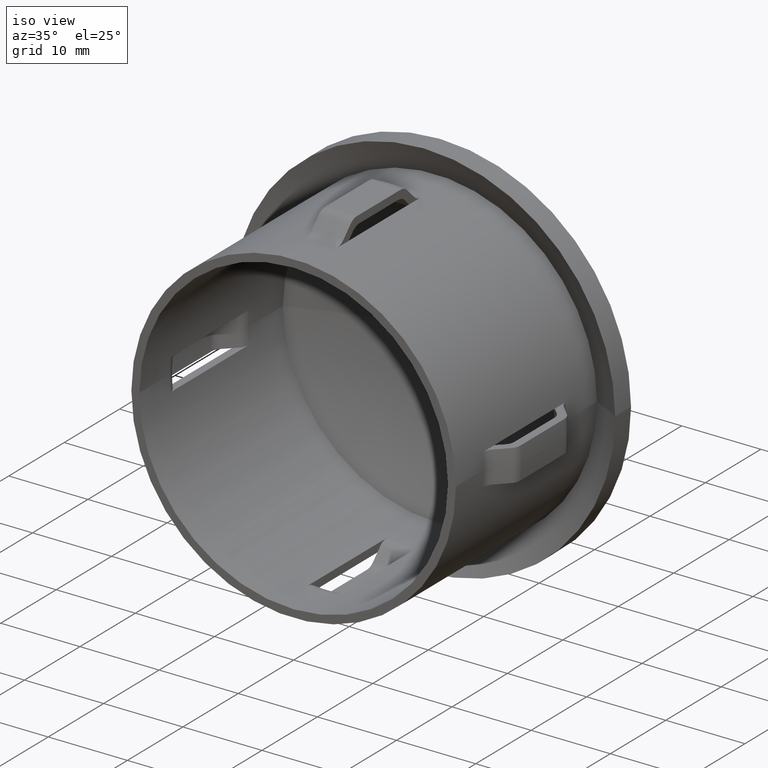
[diagram: clean part render]
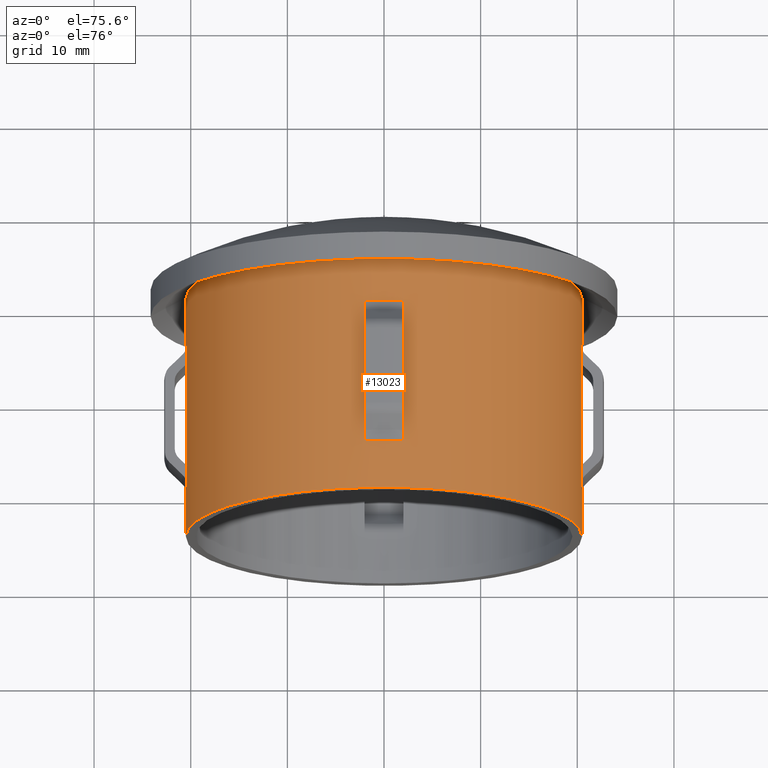
[diagram: tour spotlight — one face highlighted and labeled with its STEP entity id]
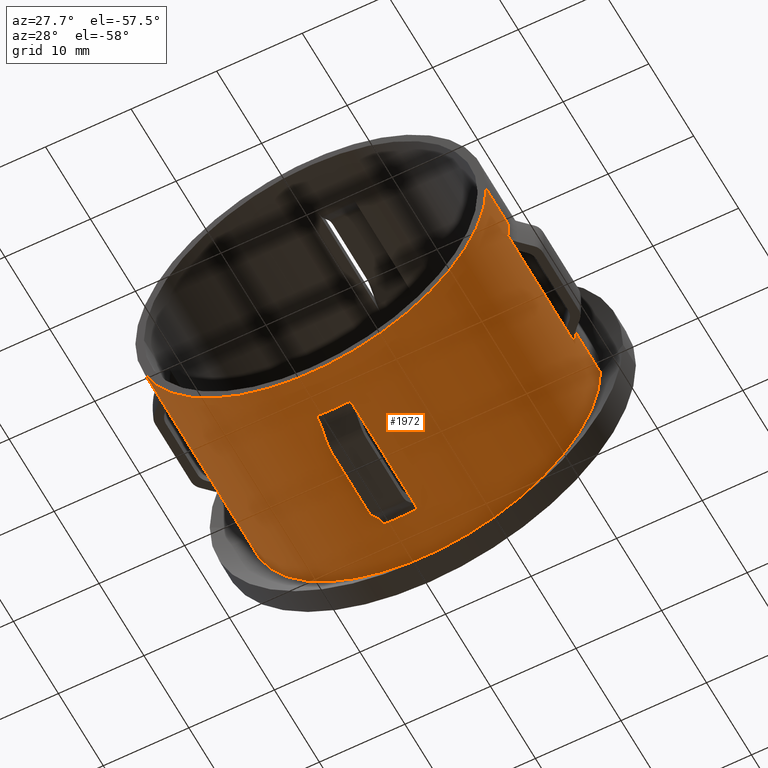
[diagram: tour spotlight — one face highlighted and labeled with its STEP entity id]
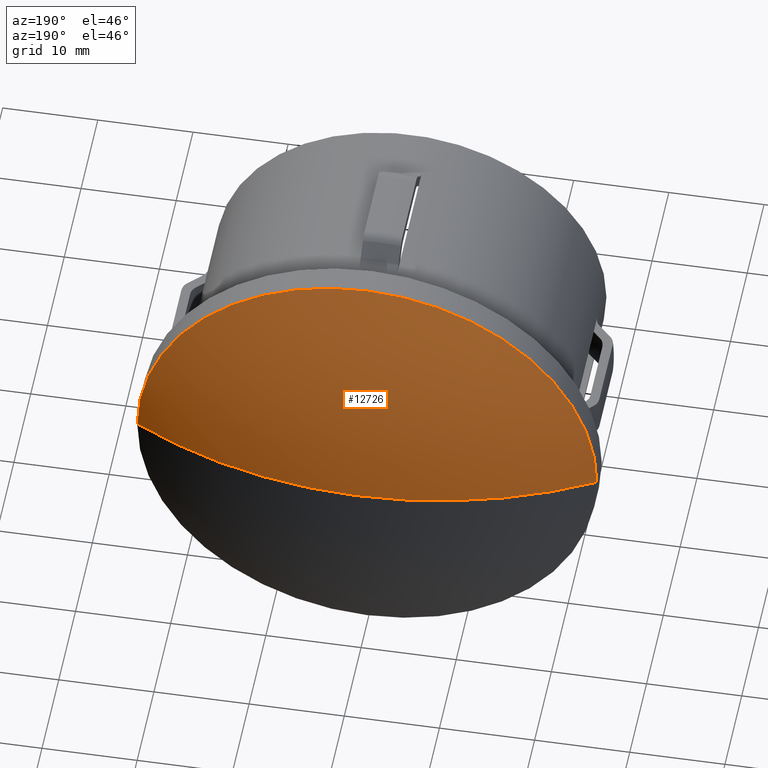
[diagram: tour spotlight — one face highlighted and labeled with its STEP entity id]
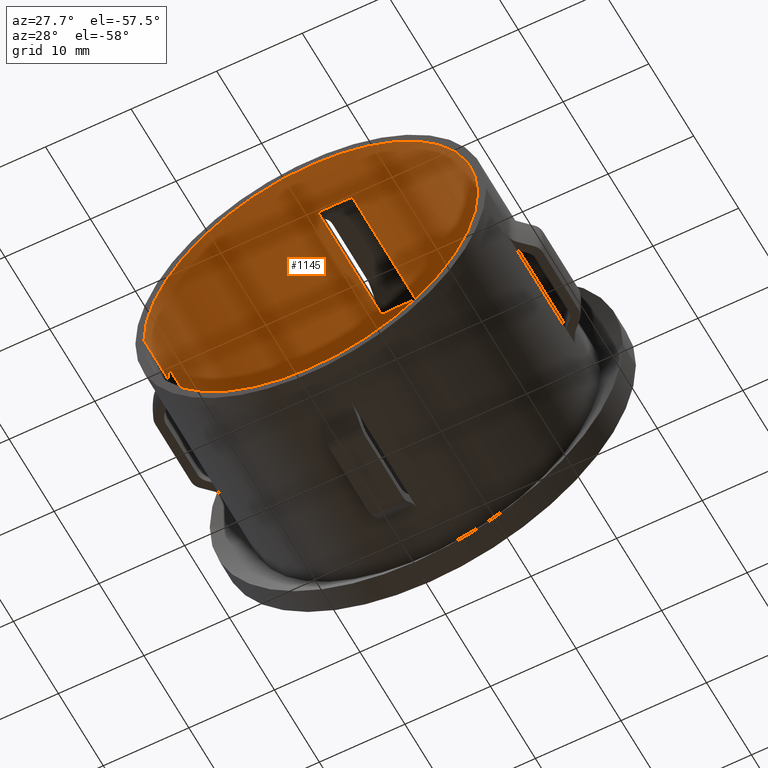
[diagram: tour spotlight — one face highlighted and labeled with its STEP entity id]
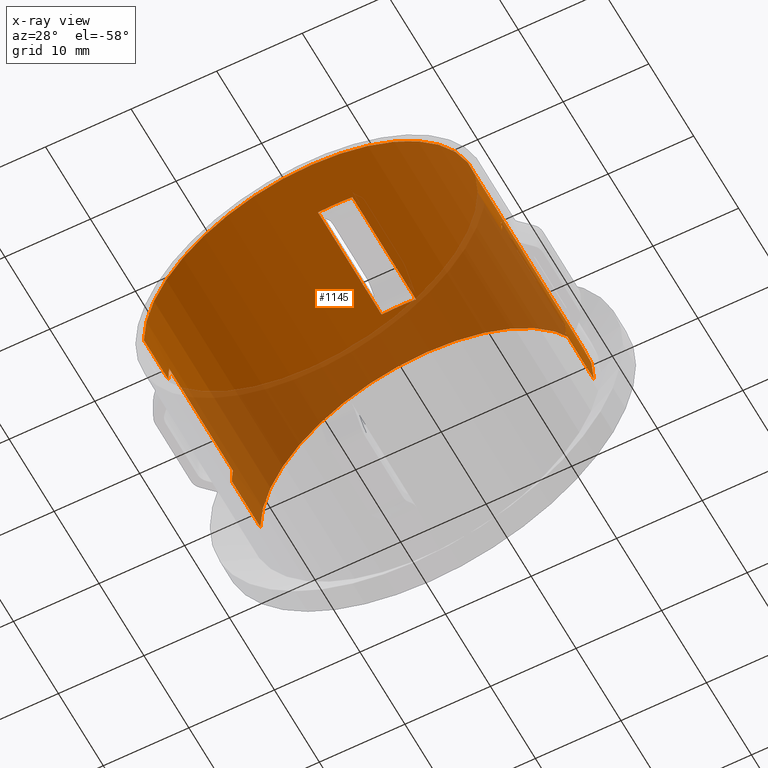
[diagram: x-ray of the same camera — body ghosted, this tour face saturated]
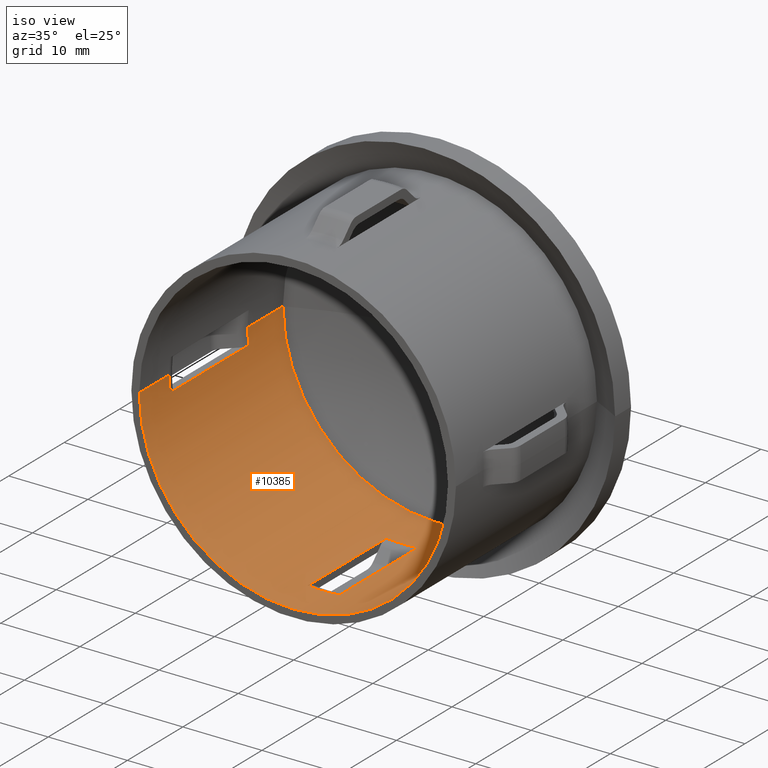
[diagram: tour spotlight — one face highlighted and labeled with its STEP entity id]
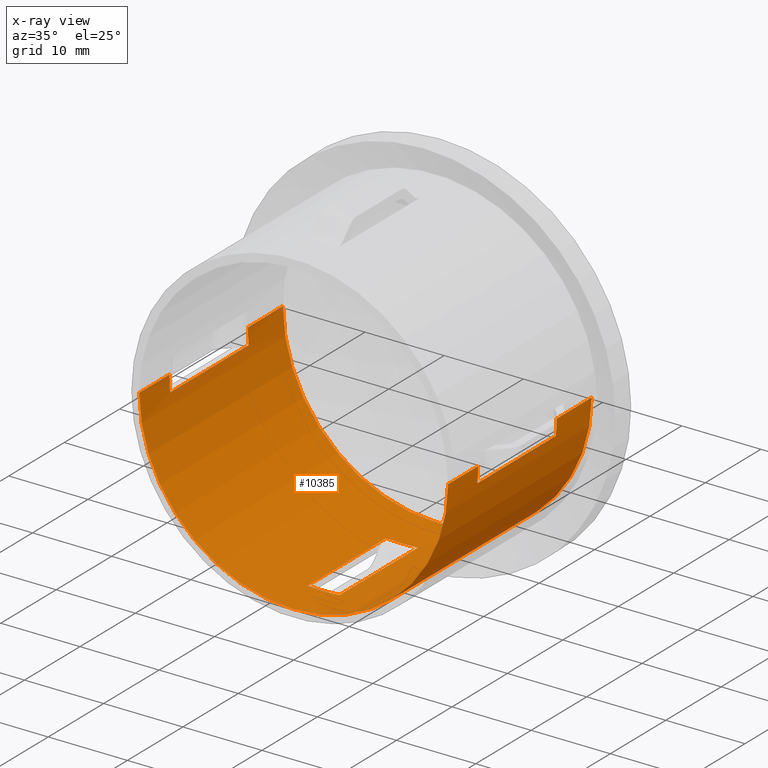
[diagram: x-ray of the same camera — body ghosted, this tour face saturated]
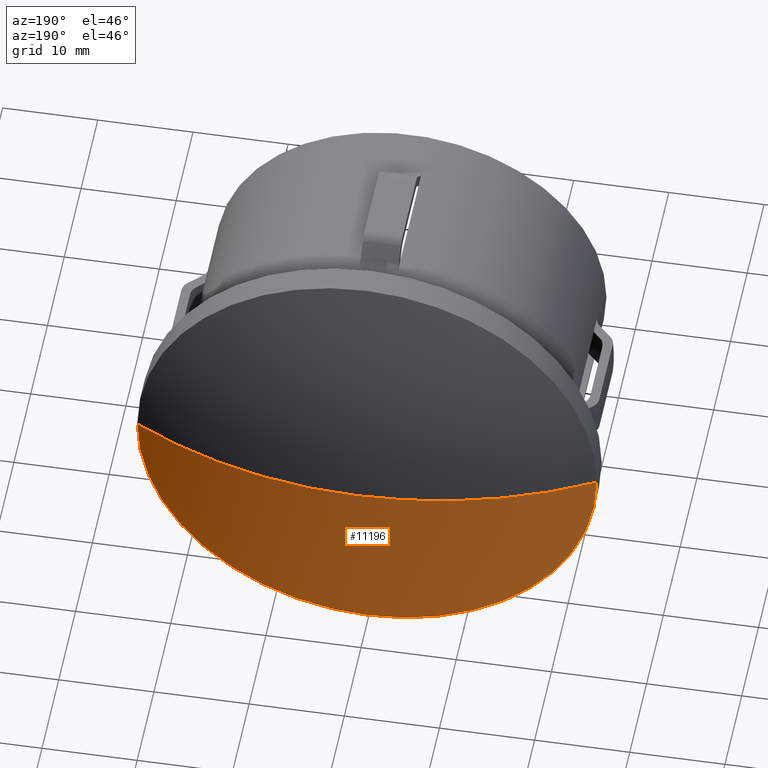
[diagram: tour spotlight — one face highlighted and labeled with its STEP entity id]
A machine part: a face-by-face anatomy tour. The part has 318 B-rep faces; the first image is the clean iso view, then the 6 largest visible faces are spotlighted one at a time (largest first), each with its STEP entity span.

Face 1 — auxiliary view, entity #13023. In plain terms, the highlighted cylindrical surface (partial cylindrical patch) has radius 20.5 mm, axis along (-0, -1, -0).
Definition (entity closure, byte-faithful):
#163 = DIRECTION ( 'NONE',  ( -2.904862207577519400E-015, -1.000000000000000000, -0.0000000000000000000 ) ) ;
#217 = CARTESIAN_POINT ( 'NONE',  ( -20.50000000000008900, 30.10000000000006200, 2.510525938252084700E-015 ) ) ;
#359 = CARTESIAN_POINT ( 'NONE',  ( -7.286928583047367700E-014, 5.014718625761499700, 0.0000000000000000000 ) ) ;
#428 = VERTEX_POINT ( 'NONE', #4456 ) ;
#548 = ORIENTED_EDGE ( 'NONE', *, *, #6608, .F. ) ;
#608 = DIRECTION ( 'NONE',  ( 1.000000000000000000, -2.919412679082907500E-015, 0.0000000000000000000 ) ) ;
#784 = CARTESIAN_POINT ( 'NONE',  ( 2.000000000000002200, 17.96446609406726600, 20.40220576310324700 ) ) ;
#807 = VECTOR ( 'NONE', #11319, 1000.000000000000000 ) ;
#915 = VECTOR ( 'NONE', #2123, 1000.000000000000000 ) ;
#1039 = VERTEX_POINT ( 'NONE', #9570 ) ;
#1111 = CARTESIAN_POINT ( 'NONE',  ( -20.40220576310334300, 17.96446609406727600, 1.999999999999994900 ) ) ;
#1149 = VERTEX_POINT ( 'NONE', #9501 ) ;
#1356 = CYLINDRICAL_SURFACE ( 'NONE', #10915, 20.50000000000008900 ) ;
#1369 = CARTESIAN_POINT ( 'NONE',  ( 20.40220576310317200, 5.014718625761436700, 1.999999999999994900 ) ) ;
#1392 = LINE ( 'NONE', #5971, #12327 ) ;
#1487 = DIRECTION ( 'NONE',  ( -2.904862207577519400E-015, -1.000000000000000000, -0.0000000000000000000 ) ) ;
#1557 = VECTOR ( 'NONE', #9360, 1000.000000000000000 ) ;
#1576 = CARTESIAN_POINT ( 'NONE',  ( -20.50000000000005300, 20.00000000000011700, 2.510525938252081600E-015 ) ) ;
#1609 = EDGE_CURVE ( 'NONE', #14254, #428, #2163, .T. ) ;
#1692 = VECTOR ( 'NONE', #9867, 1000.000000000000000 ) ;
#1703 = DIRECTION ( 'NONE',  ( -2.904862207577519400E-015, -1.000000000000000000, -0.0000000000000000000 ) ) ;
#1743 = CARTESIAN_POINT ( 'NONE',  ( -20.40220576310334300, 20.00000000000000000, 1.999999999999994900 ) ) ;
#1791 = CARTESIAN_POINT ( 'NONE',  ( 20.50000000000000400, -5.690770721279668900E-016, 0.0000000000000000000 ) ) ;
#1833 = EDGE_CURVE ( 'NONE', #14182, #11244, #5207, .T. ) ;
#2069 = FACE_BOUND ( 'NONE', #14028, .T. ) ;
#2123 = DIRECTION ( 'NONE',  ( -2.449293598294745400E-017, -1.000000000000000000, -0.0000000000000000000 ) ) ;
#2153 = ORIENTED_EDGE ( 'NONE', *, *, #8758, .F. ) ;
#2163 = LINE ( 'NONE', #2890, #3780 ) ;
#2438 = VERTEX_POINT ( 'NONE', #10259 ) ;
#2439 = VECTOR ( 'NONE', #6140, 1000.000000000000000 ) ;
#2486 = DIRECTION ( 'NONE',  ( -2.904862207577519400E-015, -1.000000000000000000, -0.0000000000000000000 ) ) ;
#2601 = CIRCLE ( 'NONE', #9089, 20.50000000000009200 ) ;
#2627 = CARTESIAN_POINT ( 'NONE',  ( -1.999999999999997300, 20.00000000000000000, 20.40220576310326500 ) ) ;
#2634 = CARTESIAN_POINT ( 'NONE',  ( -1.999999999999997300, 20.00000000000000000, 20.40220576310326500 ) ) ;
#2684 = CIRCLE ( 'NONE', #5879, 20.50000000000002500 ) ;
#2849 = EDGE_CURVE ( 'NONE', #11272, #5561, #2684, .T. ) ;
#2875 = DIRECTION ( 'NONE',  ( 1.000000000000000000, -2.877102350400545800E-015, 0.0000000000000000000 ) ) ;
#2890 = CARTESIAN_POINT ( 'NONE',  ( -20.50000000000008900, 30.10000000000006200, 2.510525938252084700E-015 ) ) ;
#2922 = CARTESIAN_POINT ( 'NONE',  ( 20.50000000000008900, 30.09999999999994100, 0.0000000000000000000 ) ) ;
#3015 = VECTOR ( 'NONE', #13693, 1000.000000000000000 ) ;
#3169 = CARTESIAN_POINT ( 'NONE',  ( 20.40220576310317200, 20.00000000000000000, 1.999999999999994900 ) ) ;
#3241 = VERTEX_POINT ( 'NONE', #12112 ) ;
#3267 = CARTESIAN_POINT ( 'NONE',  ( 20.40220576310317200, 7.050252531694318300, 1.999999999999994900 ) ) ;
#3301 = EDGE_CURVE ( 'NONE', #3380, #8323, #7003, .T. ) ;
#3380 = VERTEX_POINT ( 'NONE', #10065 ) ;
#3388 = EDGE_CURVE ( 'NONE', #14182, #1039, #8433, .T. ) ;
#3652 = ORIENTED_EDGE ( 'NONE', *, *, #9382, .F. ) ;
#3662 = EDGE_CURVE ( 'NONE', #4157, #4632, #14140, .T. ) ;
#3780 = VECTOR ( 'NONE', #11941, 1000.000000000000000 ) ;
#3839 = ORIENTED_EDGE ( 'NONE', *, *, #6058, .F. ) ;
#3853 = LINE ( 'NONE', #6193, #1692 ) ;
#3928 = VECTOR ( 'NONE', #12599, 1000.000000000000000 ) ;
#3944 = ORIENTED_EDGE ( 'NONE', *, *, #3388, .F. ) ;
#4078 = CARTESIAN_POINT ( 'NONE',  ( -20.40220576310334300, 20.00000000000000000, 1.999999999999994900 ) ) ;
#4089 = ORIENTED_EDGE ( 'NONE', *, *, #12830, .T. ) ;
#4095 = CARTESIAN_POINT ( 'NONE',  ( 2.000000000000001800, 7.050252531694249000, 20.40220576310324700 ) ) ;
#4125 = CARTESIAN_POINT ( 'NONE',  ( 0.0000000000000000000, 30.10000000000000100, 0.0000000000000000000 ) ) ;
#4157 = VERTEX_POINT ( 'NONE', #10844 ) ;
#4166 = DIRECTION ( 'NONE',  ( -2.904862207577519400E-015, -1.000000000000000000, -0.0000000000000000000 ) ) ;
#4225 = CIRCLE ( 'NONE', #6325, 20.50000000000002500 ) ;
#4256 = VECTOR ( 'NONE', #14550, 1000.000000000000000 ) ;
#4339 = ORIENTED_EDGE ( 'NONE', *, *, #3662, .T. ) ;
#4395 = VECTOR ( 'NONE', #1703, 1000.000000000000000 ) ;
#4412 = VECTOR ( 'NONE', #11680, 1000.000000000000000 ) ;
#4456 = CARTESIAN_POINT ( 'NONE',  ( -20.50000000000017800, 1.185302734385508700E-013, 2.510525938252089900E-015 ) ) ;
#4571 = CARTESIAN_POINT ( 'NONE',  ( -2.933910829653278300E-014, 20.00000000000006000, 0.0000000000000000000 ) ) ;
#4582 = EDGE_CURVE ( 'NONE', #6134, #3380, #4982, .T. ) ;
#4632 = VERTEX_POINT ( 'NONE', #1369 ) ;
#4648 = EDGE_CURVE ( 'NONE', #11272, #6134, #6068, .T. ) ;
#4765 = ORIENTED_EDGE ( 'NONE', *, *, #7820, .F. ) ;
#4786 = CARTESIAN_POINT ( 'NONE',  ( -20.40220576310334300, 20.00000000000000000, 1.999999999999994900 ) ) ;
#4815 = DIRECTION ( 'NONE',  ( 1.000000000000000000, -2.904862207577519000E-015, 0.0000000000000000000 ) ) ;
#4982 = LINE ( 'NONE', #4786, #3015 ) ;
#5036 = VERTEX_POINT ( 'NONE', #3267 ) ;
#5065 = ORIENTED_EDGE ( 'NONE', *, *, #1833, .T. ) ;
#5129 = CARTESIAN_POINT ( 'NONE',  ( -1.999999999999997800, 5.014718625761436700, 20.40220576310326500 ) ) ;
#5146 = VECTOR ( 'NONE', #4166, 1000.000000000000000 ) ;
#5152 = VECTOR ( 'NONE', #5956, 1000.000000000000000 ) ;
#5155 = LINE ( 'NONE', #217, #1557 ) ;
#5194 = CARTESIAN_POINT ( 'NONE',  ( -7.286928583047367700E-014, 5.014718625761499700, 0.0000000000000000000 ) ) ;
#5207 = LINE ( 'NONE', #11177, #915 ) ;
#5323 = CARTESIAN_POINT ( 'NONE',  ( -7.286928583047367700E-014, 5.014718625761499700, 0.0000000000000000000 ) ) ;
#5398 = VERTEX_POINT ( 'NONE', #4095 ) ;
#5451 = VERTEX_POINT ( 'NONE', #8697 ) ;
#5561 = VERTEX_POINT ( 'NONE', #1576 ) ;
#5825 = DIRECTION ( 'NONE',  ( 1.000000000000000000, -2.877102350400554500E-015, 0.0000000000000000000 ) ) ;
#5840 = CARTESIAN_POINT ( 'NONE',  ( -2.933910829653278300E-014, 20.00000000000006000, 0.0000000000000000000 ) ) ;
#5861 = EDGE_CURVE ( 'NONE', #6535, #12931, #9305, .T. ) ;
#5868 = LINE ( 'NONE', #13405, #4256 ) ;
#5879 = AXIS2_PLACEMENT_3D ( 'NONE', #4571, #10287, #5825 ) ;
#5956 = DIRECTION ( 'NONE',  ( -2.449293598294745400E-017, -1.000000000000000000, -0.0000000000000000000 ) ) ;
#5971 = CARTESIAN_POINT ( 'NONE',  ( -1.999999999999997300, 20.00000000000000000, 20.40220576310326500 ) ) ;
#6046 = VERTEX_POINT ( 'NONE', #9860 ) ;
#6058 = EDGE_CURVE ( 'NONE', #4157, #14347, #8226, .T. ) ;
#6068 = LINE ( 'NONE', #14045, #14835 ) ;
#6134 = VERTEX_POINT ( 'NONE', #1111 ) ;
#6140 = DIRECTION ( 'NONE',  ( -2.449293598294745400E-017, -1.000000000000000000, -0.0000000000000000000 ) ) ;
#6193 = CARTESIAN_POINT ( 'NONE',  ( 20.40220576310317200, 20.00000000000000000, 1.999999999999994900 ) ) ;
#6325 = AXIS2_PLACEMENT_3D ( 'NONE', #5840, #10400, #9520 ) ;
#6388 = CARTESIAN_POINT ( 'NONE',  ( -1.999999999999997800, 7.050252531694318300, 20.40220576310326500 ) ) ;
#6535 = VERTEX_POINT ( 'NONE', #6388 ) ;
#6571 = CIRCLE ( 'NONE', #9132, 20.50000000000001100 ) ;
#6608 = EDGE_CURVE ( 'NONE', #3241, #6046, #12292, .T. ) ;
#6894 = CARTESIAN_POINT ( 'NONE',  ( 2.000000000000002200, 20.00000000000000000, 20.40220576310324700 ) ) ;
#7003 = LINE ( 'NONE', #1743, #3928 ) ;
#7015 = DIRECTION ( 'NONE',  ( 1.000000000000000000, -2.877102350400556500E-015, 0.0000000000000000000 ) ) ;
#7021 = EDGE_CURVE ( 'NONE', #5451, #12931, #13999, .T. ) ;
#7094 = CARTESIAN_POINT ( 'NONE',  ( -8.743635244808317200E-014, 5.898059818321144100E-014, 0.0000000000000000000 ) ) ;
#7144 = DIRECTION ( 'NONE',  ( -2.449293598294745400E-017, -1.000000000000000000, 0.0000000000000000000 ) ) ;
#7154 = EDGE_CURVE ( 'NONE', #11244, #5398, #13166, .T. ) ;
#7475 = DIRECTION ( 'NONE',  ( -2.904862207577519400E-015, -1.000000000000000000, -0.0000000000000000000 ) ) ;
#7604 = DIRECTION ( 'NONE',  ( -2.904862207577519400E-015, -1.000000000000000000, -0.0000000000000000000 ) ) ;
#7815 = CARTESIAN_POINT ( 'NONE',  ( 2.000000000000002200, 20.00000000000000000, 20.40220576310324700 ) ) ;
#7820 = EDGE_CURVE ( 'NONE', #14347, #428, #2601, .T. ) ;
#7821 = DIRECTION ( 'NONE',  ( -2.904862207577519400E-015, -1.000000000000000000, -0.0000000000000000000 ) ) ;
#7918 = ORIENTED_EDGE ( 'NONE', *, *, #2849, .F. ) ;
#8107 = ORIENTED_EDGE ( 'NONE', *, *, #5861, .F. ) ;
#8226 = LINE ( 'NONE', #2922, #5146 ) ;
#8295 = ORIENTED_EDGE ( 'NONE', *, *, #13458, .F. ) ;
#8323 = VERTEX_POINT ( 'NONE', #13063 ) ;
#8366 = CARTESIAN_POINT ( 'NONE',  ( -1.351176155876895900E-014, 25.44857057125716400, 0.0000000000000000000 ) ) ;
#8433 = CIRCLE ( 'NONE', #13754, 20.50000000000002500 ) ;
#8565 = VECTOR ( 'NONE', #9004, 1000.000000000000000 ) ;
#8697 = CARTESIAN_POINT ( 'NONE',  ( 2.000000000000001800, 5.014718625761436700, 20.40220576310324700 ) ) ;
#8698 = VERTEX_POINT ( 'NONE', #11666 ) ;
#8729 = DIRECTION ( 'NONE',  ( -2.904862207577519400E-015, -1.000000000000000000, -0.0000000000000000000 ) ) ;
#8758 = EDGE_CURVE ( 'NONE', #2438, #6535, #1392, .T. ) ;
#8919 = CIRCLE ( 'NONE', #12449, 20.50000000000008200 ) ;
#9004 = DIRECTION ( 'NONE',  ( -2.449293598294745400E-017, -1.000000000000000000, -0.0000000000000000000 ) ) ;
#9089 = AXIS2_PLACEMENT_3D ( 'NONE', #7094, #163, #4815 ) ;
#9132 = AXIS2_PLACEMENT_3D ( 'NONE', #8366, #2486, #7015 ) ;
#9175 = ORIENTED_EDGE ( 'NONE', *, *, #12763, .F. ) ;
#9293 = CARTESIAN_POINT ( 'NONE',  ( 2.000000000000002200, 20.00000000000000000, 20.40220576310324700 ) ) ;
#9305 = LINE ( 'NONE', #2627, #4412 ) ;
#9360 = DIRECTION ( 'NONE',  ( -2.904862207577519400E-015, -1.000000000000000000, -0.0000000000000000000 ) ) ;
#9382 = EDGE_CURVE ( 'NONE', #6046, #5036, #5868, .T. ) ;
#9425 = ORIENTED_EDGE ( 'NONE', *, *, #1609, .T. ) ;
#9501 = CARTESIAN_POINT ( 'NONE',  ( 20.49999999999999600, 20.00000000000000000, 0.0000000000000000000 ) ) ;
#9520 = DIRECTION ( 'NONE',  ( 1.000000000000000000, -2.877102350400554500E-015, 0.0000000000000000000 ) ) ;
#9570 = CARTESIAN_POINT ( 'NONE',  ( -1.999999999999997800, 20.00000000000006800, 20.40220576310319300 ) ) ;
#9854 = EDGE_CURVE ( 'NONE', #5398, #5451, #13571, .T. ) ;
#9860 = CARTESIAN_POINT ( 'NONE',  ( 20.40220576310317200, 17.96446609406720900, 1.999999999999994900 ) ) ;
#9867 = DIRECTION ( 'NONE',  ( -2.449293598294745400E-017, -1.000000000000000000, -0.0000000000000000000 ) ) ;
#9991 = CARTESIAN_POINT ( 'NONE',  ( -20.50000000000002100, 25.44857057125722100, 2.734023979096469000E-015 ) ) ;
#10065 = CARTESIAN_POINT ( 'NONE',  ( -20.40220576310334300, 7.050252531694337000, 1.999999999999994900 ) ) ;
#10164 = LINE ( 'NONE', #2634, #2439 ) ;
#10259 = CARTESIAN_POINT ( 'NONE',  ( -1.999999999999997300, 17.96446609406720900, 20.40220576310326500 ) ) ;
#10287 = DIRECTION ( 'NONE',  ( -2.904862207577519400E-015, -1.000000000000000000, -0.0000000000000000000 ) ) ;
#10400 = DIRECTION ( 'NONE',  ( -2.904862207577519400E-015, -1.000000000000000000, -0.0000000000000000000 ) ) ;
#10543 = DIRECTION ( 'NONE',  ( -2.449293598294745400E-017, -1.000000000000000000, -0.0000000000000000000 ) ) ;
#10587 = ORIENTED_EDGE ( 'NONE', *, *, #7021, .T. ) ;
#10742 = EDGE_CURVE ( 'NONE', #12059, #5561, #5155, .T. ) ;
#10844 = CARTESIAN_POINT ( 'NONE',  ( 20.50000000000000700, 5.014718625761439300, 0.0000000000000000000 ) ) ;
#10915 = AXIS2_PLACEMENT_3D ( 'NONE', #4125, #8729, #2875 ) ;
#10944 = DIRECTION ( 'NONE',  ( 1.000000000000000000, -2.919412679082907500E-015, 0.0000000000000000000 ) ) ;
#11177 = CARTESIAN_POINT ( 'NONE',  ( 2.000000000000002200, 20.00000000000000000, 20.40220576310324700 ) ) ;
#11230 = AXIS2_PLACEMENT_3D ( 'NONE', #5323, #7604, #14585 ) ;
#11244 = VERTEX_POINT ( 'NONE', #784 ) ;
#11272 = VERTEX_POINT ( 'NONE', #4078 ) ;
#11319 = DIRECTION ( 'NONE',  ( -2.449293598294745400E-017, -1.000000000000000000, 0.0000000000000000000 ) ) ;
#11666 = CARTESIAN_POINT ( 'NONE',  ( 20.49999999999999600, 25.44857057125710400, 0.0000000000000000000 ) ) ;
#11680 = DIRECTION ( 'NONE',  ( -2.449293598294745400E-017, -1.000000000000000000, -0.0000000000000000000 ) ) ;
#11941 = DIRECTION ( 'NONE',  ( -2.904862207577519400E-015, -1.000000000000000000, -0.0000000000000000000 ) ) ;
#12059 = VERTEX_POINT ( 'NONE', #9991 ) ;
#12074 = ORIENTED_EDGE ( 'NONE', *, *, #9854, .T. ) ;
#12112 = CARTESIAN_POINT ( 'NONE',  ( 20.40220576310317200, 20.00000000000000000, 1.999999999999994900 ) ) ;
#12156 = ORIENTED_EDGE ( 'NONE', *, *, #7154, .T. ) ;
#12174 = CARTESIAN_POINT ( 'NONE',  ( 20.50000000000008900, 30.09999999999994100, 0.0000000000000000000 ) ) ;
#12292 = LINE ( 'NONE', #3169, #8565 ) ;
#12327 = VECTOR ( 'NONE', #7144, 1000.000000000000000 ) ;
#12449 = AXIS2_PLACEMENT_3D ( 'NONE', #359, #1487, #608 ) ;
#12520 = EDGE_CURVE ( 'NONE', #8323, #14254, #8919, .T. ) ;
#12599 = DIRECTION ( 'NONE',  ( -2.449293598294745400E-017, -1.000000000000000000, -0.0000000000000000000 ) ) ;
#12695 = AXIS2_PLACEMENT_3D ( 'NONE', #5194, #7475, #10944 ) ;
#12763 = EDGE_CURVE ( 'NONE', #1149, #3241, #4225, .T. ) ;
#12830 = EDGE_CURVE ( 'NONE', #8698, #12059, #6571, .T. ) ;
#12931 = VERTEX_POINT ( 'NONE', #5129 ) ;
#12939 = EDGE_CURVE ( 'NONE', #1039, #2438, #10164, .T. ) ;
#13023 = ADVANCED_FACE ( 'NONE', ( #2069, #13904 ), #1356, .T. ) ;
#13063 = CARTESIAN_POINT ( 'NONE',  ( -20.40220576310334300, 5.014718625761436700, 1.999999999999994900 ) ) ;
#13166 = LINE ( 'NONE', #6894, #807 ) ;
#13276 = ORIENTED_EDGE ( 'NONE', *, *, #12520, .T. ) ;
#13405 = CARTESIAN_POINT ( 'NONE',  ( 20.40220576310317200, 20.00000000000000000, 1.999999999999994900 ) ) ;
#13431 = CARTESIAN_POINT ( 'NONE',  ( -20.50000000000015300, 5.014718625761559200, 2.510525938252087500E-015 ) ) ;
#13458 = EDGE_CURVE ( 'NONE', #8698, #1149, #13715, .T. ) ;
#13464 = DIRECTION ( 'NONE',  ( 1.000000000000000000, -2.877102350400554500E-015, 0.0000000000000000000 ) ) ;
#13571 = LINE ( 'NONE', #9293, #5152 ) ;
#13693 = DIRECTION ( 'NONE',  ( -2.449293598294745400E-017, -1.000000000000000000, 0.0000000000000000000 ) ) ;
#13715 = LINE ( 'NONE', #12174, #4395 ) ;
#13754 = AXIS2_PLACEMENT_3D ( 'NONE', #14648, #7821, #13464 ) ;
#13904 = FACE_OUTER_BOUND ( 'NONE', #14784, .T. ) ;
#13999 = CIRCLE ( 'NONE', #12695, 20.50000000000008200 ) ;
#14028 = EDGE_LOOP ( 'NONE', ( #8107, #2153, #14764, #3944, #5065, #12156, #12074, #10587 ) ) ;
#14038 = EDGE_CURVE ( 'NONE', #5036, #4632, #3853, .T. ) ;
#14045 = CARTESIAN_POINT ( 'NONE',  ( -20.40220576310334300, 20.00000000000000000, 1.999999999999994900 ) ) ;
#14052 = ORIENTED_EDGE ( 'NONE', *, *, #4582, .T. ) ;
#14070 = ORIENTED_EDGE ( 'NONE', *, *, #14038, .F. ) ;
#14140 = CIRCLE ( 'NONE', #11230, 20.50000000000008200 ) ;
#14182 = VERTEX_POINT ( 'NONE', #7815 ) ;
#14254 = VERTEX_POINT ( 'NONE', #13431 ) ;
#14261 = ORIENTED_EDGE ( 'NONE', *, *, #10742, .T. ) ;
#14347 = VERTEX_POINT ( 'NONE', #1791 ) ;
#14414 = ORIENTED_EDGE ( 'NONE', *, *, #4648, .T. ) ;
#14550 = DIRECTION ( 'NONE',  ( -2.449293598294745400E-017, -1.000000000000000000, 0.0000000000000000000 ) ) ;
#14585 = DIRECTION ( 'NONE',  ( 1.000000000000000000, -2.919412679082907500E-015, 0.0000000000000000000 ) ) ;
#14648 = CARTESIAN_POINT ( 'NONE',  ( -2.933910829653278300E-014, 20.00000000000006000, 0.0000000000000000000 ) ) ;
#14701 = ORIENTED_EDGE ( 'NONE', *, *, #3301, .T. ) ;
#14764 = ORIENTED_EDGE ( 'NONE', *, *, #12939, .F. ) ;
#14784 = EDGE_LOOP ( 'NONE', ( #4089, #14261, #7918, #14414, #14052, #14701, #13276, #9425, #4765, #3839, #4339, #14070, #3652, #548, #9175, #8295 ) ) ;
#14835 = VECTOR ( 'NONE', #10543, 1000.000000000000000 ) ;

Face 2 — auxiliary view, entity #1972. In plain terms, the highlighted cylindrical surface (partial cylindrical patch) has radius 20.5 mm, axis along (-0, -1, -0).
Definition (entity closure, byte-faithful):
#55 = AXIS2_PLACEMENT_3D ( 'NONE', #544, #9671, #6300 ) ;
#196 = LINE ( 'NONE', #4972, #3595 ) ;
#216 = DIRECTION ( 'NONE',  ( -2.449293598294745400E-017, -1.000000000000000000, 0.0000000000000000000 ) ) ;
#217 = CARTESIAN_POINT ( 'NONE',  ( -20.50000000000008900, 30.10000000000006200, 2.510525938252084700E-015 ) ) ;
#377 = DIRECTION ( 'NONE',  ( -2.449293598294745400E-017, -1.000000000000000000, -0.0000000000000000000 ) ) ;
#379 = ORIENTED_EDGE ( 'NONE', *, *, #2079, .T. ) ;
#380 = EDGE_CURVE ( 'NONE', #998, #3390, #10253, .T. ) ;
#428 = VERTEX_POINT ( 'NONE', #4456 ) ;
#483 = VECTOR ( 'NONE', #13161, 1000.000000000000000 ) ;
#496 = DIRECTION ( 'NONE',  ( 1.000000000000000000, -2.904862207577519000E-015, 0.0000000000000000000 ) ) ;
#544 = CARTESIAN_POINT ( 'NONE',  ( -2.933910829653278300E-014, 20.00000000000006000, 0.0000000000000000000 ) ) ;
#655 = DIRECTION ( 'NONE',  ( 1.000000000000000000, -2.877102350400556500E-015, 0.0000000000000000000 ) ) ;
#666 = CARTESIAN_POINT ( 'NONE',  ( -20.40220576310334300, 17.96446609406720900, -2.000000000000006200 ) ) ;
#998 = VERTEX_POINT ( 'NONE', #2779 ) ;
#1009 = DIRECTION ( 'NONE',  ( -2.449293598294745400E-017, -1.000000000000000000, -0.0000000000000000000 ) ) ;
#1122 = ORIENTED_EDGE ( 'NONE', *, *, #7110, .F. ) ;
#1149 = VERTEX_POINT ( 'NONE', #9501 ) ;
#1193 = CARTESIAN_POINT ( 'NONE',  ( -7.286928583047367700E-014, 5.014718625761499700, 0.0000000000000000000 ) ) ;
#1243 = CARTESIAN_POINT ( 'NONE',  ( 20.40220576310317200, 20.00000000000000000, -2.000000000000006200 ) ) ;
#1479 = CARTESIAN_POINT ( 'NONE',  ( -8.743635244808317200E-014, 5.898059818321144100E-014, 0.0000000000000000000 ) ) ;
#1505 = VECTOR ( 'NONE', #10151, 1000.000000000000000 ) ;
#1509 = ORIENTED_EDGE ( 'NONE', *, *, #6058, .T. ) ;
#1557 = VECTOR ( 'NONE', #9360, 1000.000000000000000 ) ;
#1576 = CARTESIAN_POINT ( 'NONE',  ( -20.50000000000005300, 20.00000000000011700, 2.510525938252081600E-015 ) ) ;
#1609 = EDGE_CURVE ( 'NONE', #14254, #428, #2163, .T. ) ;
#1618 = DIRECTION ( 'NONE',  ( 1.000000000000000000, -2.919412679082907500E-015, 0.0000000000000000000 ) ) ;
#1703 = DIRECTION ( 'NONE',  ( -2.904862207577519400E-015, -1.000000000000000000, -0.0000000000000000000 ) ) ;
#1791 = CARTESIAN_POINT ( 'NONE',  ( 20.50000000000000400, -5.690770721279668900E-016, 0.0000000000000000000 ) ) ;
#1813 = VERTEX_POINT ( 'NONE', #3320 ) ;
#1972 = ADVANCED_FACE ( 'NONE', ( #14700, #4672 ), #12371, .T. ) ;
#2009 = EDGE_CURVE ( 'NONE', #9330, #6653, #196, .T. ) ;
#2033 = ORIENTED_EDGE ( 'NONE', *, *, #10956, .F. ) ;
#2079 = EDGE_CURVE ( 'NONE', #11101, #12429, #14355, .T. ) ;
#2163 = LINE ( 'NONE', #2890, #3780 ) ;
#2271 = VERTEX_POINT ( 'NONE', #12179 ) ;
#2375 = ORIENTED_EDGE ( 'NONE', *, *, #2572, .T. ) ;
#2572 = EDGE_CURVE ( 'NONE', #7148, #4157, #6103, .T. ) ;
#2631 = EDGE_CURVE ( 'NONE', #11283, #11101, #8821, .T. ) ;
#2656 = AXIS2_PLACEMENT_3D ( 'NONE', #1479, #12858, #496 ) ;
#2686 = CARTESIAN_POINT ( 'NONE',  ( -1.999999999999997100, 20.00000000000000000, -20.40220576310326500 ) ) ;
#2759 = EDGE_LOOP ( 'NONE', ( #9611, #13962, #12620, #4312, #12681, #6273, #8264, #2375, #1509, #13538, #7684, #3315, #3405, #6041, #14479, #5717 ) ) ;
#2779 = CARTESIAN_POINT ( 'NONE',  ( 20.40220576310317200, 17.96446609406725500, -2.000000000000006200 ) ) ;
#2890 = CARTESIAN_POINT ( 'NONE',  ( -20.50000000000008900, 30.10000000000006200, 2.510525938252084700E-015 ) ) ;
#2922 = CARTESIAN_POINT ( 'NONE',  ( 20.50000000000008900, 30.09999999999994100, 0.0000000000000000000 ) ) ;
#3192 = CARTESIAN_POINT ( 'NONE',  ( 2.000000000000002200, 20.00000000000000000, -20.40220576310324700 ) ) ;
#3315 = ORIENTED_EDGE ( 'NONE', *, *, #5264, .T. ) ;
#3320 = CARTESIAN_POINT ( 'NONE',  ( -1.999999999999997300, 5.014718625761436700, -20.40220576310326500 ) ) ;
#3337 = LINE ( 'NONE', #3849, #9111 ) ;
#3379 = CIRCLE ( 'NONE', #8219, 20.50000000000008200 ) ;
#3386 = DIRECTION ( 'NONE',  ( 1.000000000000000000, -2.919412679082907500E-015, 0.0000000000000000000 ) ) ;
#3390 = VERTEX_POINT ( 'NONE', #4281 ) ;
#3405 = ORIENTED_EDGE ( 'NONE', *, *, #3789, .F. ) ;
#3408 = CARTESIAN_POINT ( 'NONE',  ( 2.000000000000002200, 20.00000000000000000, -20.40220576310324700 ) ) ;
#3421 = EDGE_CURVE ( 'NONE', #1813, #2271, #3379, .T. ) ;
#3558 = EDGE_CURVE ( 'NONE', #12429, #1813, #8967, .T. ) ;
#3595 = VECTOR ( 'NONE', #12935, 1000.000000000000000 ) ;
#3672 = DIRECTION ( 'NONE',  ( -2.904862207577519400E-015, -1.000000000000000000, -0.0000000000000000000 ) ) ;
#3766 = VECTOR ( 'NONE', #3982, 1000.000000000000000 ) ;
#3780 = VECTOR ( 'NONE', #11941, 1000.000000000000000 ) ;
#3789 = EDGE_CURVE ( 'NONE', #12223, #11255, #9681, .T. ) ;
#3849 = CARTESIAN_POINT ( 'NONE',  ( -20.40220576310334300, 20.00000000000000000, -2.000000000000006200 ) ) ;
#3879 = LINE ( 'NONE', #6100, #483 ) ;
#3975 = CARTESIAN_POINT ( 'NONE',  ( 2.000000000000002700, 20.00000000000005300, -20.40220576310318600 ) ) ;
#3982 = DIRECTION ( 'NONE',  ( -2.449293598294745400E-017, -1.000000000000000000, -0.0000000000000000000 ) ) ;
#4034 = CARTESIAN_POINT ( 'NONE',  ( -7.286928583047367700E-014, 5.014718625761499700, 0.0000000000000000000 ) ) ;
#4098 = AXIS2_PLACEMENT_3D ( 'NONE', #14577, #5500, #13859 ) ;
#4157 = VERTEX_POINT ( 'NONE', #10844 ) ;
#4166 = DIRECTION ( 'NONE',  ( -2.904862207577519400E-015, -1.000000000000000000, -0.0000000000000000000 ) ) ;
#4218 = CARTESIAN_POINT ( 'NONE',  ( -20.40220576310334300, 5.014718625761436700, -2.000000000000006200 ) ) ;
#4281 = CARTESIAN_POINT ( 'NONE',  ( 20.40220576310317200, 7.050252531694183300, -2.000000000000006200 ) ) ;
#4312 = ORIENTED_EDGE ( 'NONE', *, *, #6428, .F. ) ;
#4395 = VECTOR ( 'NONE', #1703, 1000.000000000000000 ) ;
#4456 = CARTESIAN_POINT ( 'NONE',  ( -20.50000000000017800, 1.185302734385508700E-013, 2.510525938252089900E-015 ) ) ;
#4672 = FACE_BOUND ( 'NONE', #7010, .T. ) ;
#4752 = CARTESIAN_POINT ( 'NONE',  ( -1.999999999999997100, 17.96446609406726900, -20.40220576310326500 ) ) ;
#4972 = CARTESIAN_POINT ( 'NONE',  ( 2.000000000000002200, 20.00000000000000000, -20.40220576310324700 ) ) ;
#5087 = EDGE_CURVE ( 'NONE', #3390, #7148, #8954, .T. ) ;
#5146 = VECTOR ( 'NONE', #4166, 1000.000000000000000 ) ;
#5155 = LINE ( 'NONE', #217, #1557 ) ;
#5264 = EDGE_CURVE ( 'NONE', #14254, #11255, #14656, .T. ) ;
#5284 = CIRCLE ( 'NONE', #55, 20.50000000000002500 ) ;
#5500 = DIRECTION ( 'NONE',  ( -2.904862207577519400E-015, -1.000000000000000000, -0.0000000000000000000 ) ) ;
#5515 = CARTESIAN_POINT ( 'NONE',  ( -20.40220576310334300, 20.00000000000000000, -2.000000000000006200 ) ) ;
#5561 = VERTEX_POINT ( 'NONE', #1576 ) ;
#5717 = ORIENTED_EDGE ( 'NONE', *, *, #7363, .F. ) ;
#5761 = VERTEX_POINT ( 'NONE', #11270 ) ;
#5779 = CARTESIAN_POINT ( 'NONE',  ( -7.286928583047367700E-014, 5.014718625761499700, 0.0000000000000000000 ) ) ;
#5789 = AXIS2_PLACEMENT_3D ( 'NONE', #4034, #10691, #1618 ) ;
#5973 = AXIS2_PLACEMENT_3D ( 'NONE', #13943, #3672, #11723 ) ;
#6041 = ORIENTED_EDGE ( 'NONE', *, *, #6847, .F. ) ;
#6058 = EDGE_CURVE ( 'NONE', #4157, #14347, #8226, .T. ) ;
#6100 = CARTESIAN_POINT ( 'NONE',  ( -20.40220576310334300, 20.00000000000000000, -2.000000000000006200 ) ) ;
#6103 = CIRCLE ( 'NONE', #5789, 20.50000000000008200 ) ;
#6112 = DIRECTION ( 'NONE',  ( -2.904862207577519400E-015, -1.000000000000000000, -0.0000000000000000000 ) ) ;
#6273 = ORIENTED_EDGE ( 'NONE', *, *, #380, .T. ) ;
#6300 = DIRECTION ( 'NONE',  ( 1.000000000000000000, -2.877102350400554500E-015, 0.0000000000000000000 ) ) ;
#6428 = EDGE_CURVE ( 'NONE', #9097, #1149, #8388, .T. ) ;
#6453 = VECTOR ( 'NONE', #1009, 1000.000000000000000 ) ;
#6483 = LINE ( 'NONE', #3192, #9154 ) ;
#6509 = CARTESIAN_POINT ( 'NONE',  ( 20.40220576310317200, 5.014718625761436700, -2.000000000000006200 ) ) ;
#6653 = VERTEX_POINT ( 'NONE', #10278 ) ;
#6664 = VERTEX_POINT ( 'NONE', #6993 ) ;
#6712 = EDGE_CURVE ( 'NONE', #6653, #5761, #12840, .T. ) ;
#6847 = EDGE_CURVE ( 'NONE', #10778, #12223, #3337, .T. ) ;
#6937 = CARTESIAN_POINT ( 'NONE',  ( 20.40220576310317200, 20.00000000000000000, -2.000000000000006200 ) ) ;
#6938 = VECTOR ( 'NONE', #216, 1000.000000000000000 ) ;
#6993 = CARTESIAN_POINT ( 'NONE',  ( -20.40220576310321800, 20.00000000000011700, -2.000000000000006700 ) ) ;
#7010 = EDGE_LOOP ( 'NONE', ( #14365, #7693, #1122, #11550, #10601, #2033, #14685, #379 ) ) ;
#7110 = EDGE_CURVE ( 'NONE', #5761, #2271, #6483, .T. ) ;
#7148 = VERTEX_POINT ( 'NONE', #6509 ) ;
#7159 = CARTESIAN_POINT ( 'NONE',  ( -1.999999999999997100, 20.00000000000000000, -20.40220576310326500 ) ) ;
#7303 = DIRECTION ( 'NONE',  ( -2.904862207577519400E-015, -1.000000000000000000, -0.0000000000000000000 ) ) ;
#7363 = EDGE_CURVE ( 'NONE', #5561, #6664, #5284, .T. ) ;
#7531 = EDGE_CURVE ( 'NONE', #9097, #998, #10299, .T. ) ;
#7684 = ORIENTED_EDGE ( 'NONE', *, *, #1609, .F. ) ;
#7693 = ORIENTED_EDGE ( 'NONE', *, *, #3421, .T. ) ;
#7719 = VECTOR ( 'NONE', #377, 1000.000000000000000 ) ;
#8049 = CARTESIAN_POINT ( 'NONE',  ( 20.40220576310317200, 20.00000000000000000, -2.000000000000006200 ) ) ;
#8219 = AXIS2_PLACEMENT_3D ( 'NONE', #5779, #13791, #9222 ) ;
#8226 = LINE ( 'NONE', #2922, #5146 ) ;
#8264 = ORIENTED_EDGE ( 'NONE', *, *, #5087, .T. ) ;
#8388 = CIRCLE ( 'NONE', #8404, 20.50000000000002500 ) ;
#8404 = AXIS2_PLACEMENT_3D ( 'NONE', #11776, #7303, #8562 ) ;
#8562 = DIRECTION ( 'NONE',  ( 1.000000000000000000, -2.877102350400554500E-015, 0.0000000000000000000 ) ) ;
#8698 = VERTEX_POINT ( 'NONE', #11666 ) ;
#8821 = LINE ( 'NONE', #2686, #3766 ) ;
#8880 = CARTESIAN_POINT ( 'NONE',  ( -1.351176155876895900E-014, 25.44857057125716400, 0.0000000000000000000 ) ) ;
#8913 = CARTESIAN_POINT ( 'NONE',  ( -1.999999999999997100, 20.00000000000000000, -20.40220576310326500 ) ) ;
#8954 = LINE ( 'NONE', #6937, #13049 ) ;
#8967 = LINE ( 'NONE', #14089, #7719 ) ;
#9097 = VERTEX_POINT ( 'NONE', #1243 ) ;
#9111 = VECTOR ( 'NONE', #10760, 1000.000000000000000 ) ;
#9148 = CARTESIAN_POINT ( 'NONE',  ( -20.40220576310334300, 7.050252531694318300, -2.000000000000006200 ) ) ;
#9154 = VECTOR ( 'NONE', #11224, 1000.000000000000000 ) ;
#9222 = DIRECTION ( 'NONE',  ( 1.000000000000000000, -2.919412679082907500E-015, 0.0000000000000000000 ) ) ;
#9330 = VERTEX_POINT ( 'NONE', #3975 ) ;
#9360 = DIRECTION ( 'NONE',  ( -2.904862207577519400E-015, -1.000000000000000000, -0.0000000000000000000 ) ) ;
#9501 = CARTESIAN_POINT ( 'NONE',  ( 20.49999999999999600, 20.00000000000000000, 0.0000000000000000000 ) ) ;
#9513 = DIRECTION ( 'NONE',  ( -2.449293598294745400E-017, -1.000000000000000000, 0.0000000000000000000 ) ) ;
#9611 = ORIENTED_EDGE ( 'NONE', *, *, #10742, .F. ) ;
#9671 = DIRECTION ( 'NONE',  ( -2.904862207577519400E-015, -1.000000000000000000, -0.0000000000000000000 ) ) ;
#9681 = LINE ( 'NONE', #5515, #6453 ) ;
#9957 = EDGE_CURVE ( 'NONE', #428, #14347, #9997, .T. ) ;
#9983 = EDGE_CURVE ( 'NONE', #6664, #10778, #3879, .T. ) ;
#9991 = CARTESIAN_POINT ( 'NONE',  ( -20.50000000000002100, 25.44857057125722100, 2.734023979096469000E-015 ) ) ;
#9997 = CIRCLE ( 'NONE', #2656, 20.50000000000009200 ) ;
#10045 = AXIS2_PLACEMENT_3D ( 'NONE', #1193, #6112, #3386 ) ;
#10151 = DIRECTION ( 'NONE',  ( -2.449293598294745400E-017, -1.000000000000000000, -0.0000000000000000000 ) ) ;
#10253 = LINE ( 'NONE', #8049, #13828 ) ;
#10278 = CARTESIAN_POINT ( 'NONE',  ( 2.000000000000002200, 17.96446609406720900, -20.40220576310324700 ) ) ;
#10299 = LINE ( 'NONE', #12390, #1505 ) ;
#10434 = DIRECTION ( 'NONE',  ( -2.449293598294745400E-017, -1.000000000000000000, -0.0000000000000000000 ) ) ;
#10601 = ORIENTED_EDGE ( 'NONE', *, *, #2009, .F. ) ;
#10691 = DIRECTION ( 'NONE',  ( -2.904862207577519400E-015, -1.000000000000000000, -0.0000000000000000000 ) ) ;
#10742 = EDGE_CURVE ( 'NONE', #12059, #5561, #5155, .T. ) ;
#10759 = VECTOR ( 'NONE', #9513, 1000.000000000000000 ) ;
#10760 = DIRECTION ( 'NONE',  ( -2.449293598294745400E-017, -1.000000000000000000, 0.0000000000000000000 ) ) ;
#10778 = VERTEX_POINT ( 'NONE', #666 ) ;
#10844 = CARTESIAN_POINT ( 'NONE',  ( 20.50000000000000700, 5.014718625761439300, 0.0000000000000000000 ) ) ;
#10956 = EDGE_CURVE ( 'NONE', #11283, #9330, #11588, .T. ) ;
#11101 = VERTEX_POINT ( 'NONE', #4752 ) ;
#11224 = DIRECTION ( 'NONE',  ( -2.449293598294745400E-017, -1.000000000000000000, -0.0000000000000000000 ) ) ;
#11255 = VERTEX_POINT ( 'NONE', #4218 ) ;
#11270 = CARTESIAN_POINT ( 'NONE',  ( 2.000000000000001800, 7.050252531694318300, -20.40220576310324700 ) ) ;
#11283 = VERTEX_POINT ( 'NONE', #8913 ) ;
#11400 = DIRECTION ( 'NONE',  ( -2.449293598294745400E-017, -1.000000000000000000, 0.0000000000000000000 ) ) ;
#11550 = ORIENTED_EDGE ( 'NONE', *, *, #6712, .F. ) ;
#11588 = CIRCLE ( 'NONE', #4098, 20.50000000000002500 ) ;
#11666 = CARTESIAN_POINT ( 'NONE',  ( 20.49999999999999600, 25.44857057125710400, 0.0000000000000000000 ) ) ;
#11723 = DIRECTION ( 'NONE',  ( 1.000000000000000000, -2.877102350400545800E-015, 0.0000000000000000000 ) ) ;
#11776 = CARTESIAN_POINT ( 'NONE',  ( -2.933910829653278300E-014, 20.00000000000006000, 0.0000000000000000000 ) ) ;
#11863 = EDGE_CURVE ( 'NONE', #12059, #8698, #14636, .T. ) ;
#11941 = DIRECTION ( 'NONE',  ( -2.904862207577519400E-015, -1.000000000000000000, -0.0000000000000000000 ) ) ;
#12059 = VERTEX_POINT ( 'NONE', #9991 ) ;
#12174 = CARTESIAN_POINT ( 'NONE',  ( 20.50000000000008900, 30.09999999999994100, 0.0000000000000000000 ) ) ;
#12179 = CARTESIAN_POINT ( 'NONE',  ( 2.000000000000001800, 5.014718625761436700, -20.40220576310324700 ) ) ;
#12223 = VERTEX_POINT ( 'NONE', #9148 ) ;
#12371 = CYLINDRICAL_SURFACE ( 'NONE', #5973, 20.50000000000008900 ) ;
#12390 = CARTESIAN_POINT ( 'NONE',  ( 20.40220576310317200, 20.00000000000000000, -2.000000000000006200 ) ) ;
#12429 = VERTEX_POINT ( 'NONE', #12866 ) ;
#12620 = ORIENTED_EDGE ( 'NONE', *, *, #13458, .T. ) ;
#12681 = ORIENTED_EDGE ( 'NONE', *, *, #7531, .T. ) ;
#12840 = LINE ( 'NONE', #3408, #6938 ) ;
#12858 = DIRECTION ( 'NONE',  ( -2.904862207577519400E-015, -1.000000000000000000, -0.0000000000000000000 ) ) ;
#12866 = CARTESIAN_POINT ( 'NONE',  ( -1.999999999999997300, 7.050252531694265900, -20.40220576310326500 ) ) ;
#12935 = DIRECTION ( 'NONE',  ( -2.449293598294745400E-017, -1.000000000000000000, -0.0000000000000000000 ) ) ;
#13049 = VECTOR ( 'NONE', #10434, 1000.000000000000000 ) ;
#13122 = AXIS2_PLACEMENT_3D ( 'NONE', #8880, #13421, #655 ) ;
#13161 = DIRECTION ( 'NONE',  ( -2.449293598294745400E-017, -1.000000000000000000, -0.0000000000000000000 ) ) ;
#13421 = DIRECTION ( 'NONE',  ( -2.904862207577519400E-015, -1.000000000000000000, -0.0000000000000000000 ) ) ;
#13431 = CARTESIAN_POINT ( 'NONE',  ( -20.50000000000015300, 5.014718625761559200, 2.510525938252087500E-015 ) ) ;
#13458 = EDGE_CURVE ( 'NONE', #8698, #1149, #13715, .T. ) ;
#13538 = ORIENTED_EDGE ( 'NONE', *, *, #9957, .F. ) ;
#13715 = LINE ( 'NONE', #12174, #4395 ) ;
#13791 = DIRECTION ( 'NONE',  ( -2.904862207577519400E-015, -1.000000000000000000, -0.0000000000000000000 ) ) ;
#13828 = VECTOR ( 'NONE', #11400, 1000.000000000000000 ) ;
#13859 = DIRECTION ( 'NONE',  ( 1.000000000000000000, -2.877102350400554500E-015, 0.0000000000000000000 ) ) ;
#13943 = CARTESIAN_POINT ( 'NONE',  ( 0.0000000000000000000, 30.10000000000000100, 0.0000000000000000000 ) ) ;
#13962 = ORIENTED_EDGE ( 'NONE', *, *, #11863, .T. ) ;
#14089 = CARTESIAN_POINT ( 'NONE',  ( -1.999999999999997100, 20.00000000000000000, -20.40220576310326500 ) ) ;
#14254 = VERTEX_POINT ( 'NONE', #13431 ) ;
#14347 = VERTEX_POINT ( 'NONE', #1791 ) ;
#14355 = LINE ( 'NONE', #7159, #10759 ) ;
#14365 = ORIENTED_EDGE ( 'NONE', *, *, #3558, .T. ) ;
#14479 = ORIENTED_EDGE ( 'NONE', *, *, #9983, .F. ) ;
#14577 = CARTESIAN_POINT ( 'NONE',  ( -2.933910829653278300E-014, 20.00000000000006000, 0.0000000000000000000 ) ) ;
#14636 = CIRCLE ( 'NONE', #13122, 20.50000000000001100 ) ;
#14656 = CIRCLE ( 'NONE', #10045, 20.50000000000008200 ) ;
#14685 = ORIENTED_EDGE ( 'NONE', *, *, #2631, .T. ) ;
#14700 = FACE_OUTER_BOUND ( 'NONE', #2759, .T. ) ;

Face 3 — auxiliary view, entity #12726. In plain terms, the highlighted spherical surface has radius 50 mm.
Definition (entity closure, byte-faithful):
#789 = VERTEX_POINT ( 'NONE', #11091 ) ;
#1814 = DIRECTION ( 'NONE',  ( 1.000000000000000000, -2.873247993336325000E-015, 0.0000000000000000000 ) ) ;
#1859 = DIRECTION ( 'NONE',  ( -2.904862207577519400E-015, -1.000000000000000000, -0.0000000000000000000 ) ) ;
#2216 = VERTEX_POINT ( 'NONE', #9859 ) ;
#3330 = DIRECTION ( 'NONE',  ( -1.000000000000000000, 0.0000000000000000000, 0.0000000000000000000 ) ) ;
#3434 = DIRECTION ( 'NONE',  ( 1.000000000000000000, -2.914335439641035900E-015, 0.0000000000000000000 ) ) ;
#5691 = DIRECTION ( 'NONE',  ( -0.0000000000000000000, 0.0000000000000000000, 1.000000000000000000 ) ) ;
#5787 = CARTESIAN_POINT ( 'NONE',  ( -4.200538521075421400E-015, -17.39999999999999900, 0.0000000000000000000 ) ) ;
#6029 = AXIS2_PLACEMENT_3D ( 'NONE', #5787, #5691, #3434 ) ;
#6034 = EDGE_CURVE ( 'NONE', #11715, #2216, #7324, .T. ) ;
#6443 = EDGE_CURVE ( 'NONE', #789, #2216, #6753, .T. ) ;
#6753 = CIRCLE ( 'NONE', #6852, 50.00000000000000000 ) ;
#6852 = AXIS2_PLACEMENT_3D ( 'NONE', #9514, #10728, #10828 ) ;
#7101 = EDGE_LOOP ( 'NONE', ( #13329, #12021, #14863 ) ) ;
#7324 = CIRCLE ( 'NONE', #11916, 24.15000000000001300 ) ;
#7372 = CARTESIAN_POINT ( 'NONE',  ( 24.15000000000000200, 26.38101757611396900, 0.0000000000000000000 ) ) ;
#8026 = CIRCLE ( 'NONE', #9899, 50.00000000000000000 ) ;
#8863 = CARTESIAN_POINT ( 'NONE',  ( -1.080313149379137300E-014, 26.38101757611403600, 0.0000000000000000000 ) ) ;
#9076 = DIRECTION ( 'NONE',  ( 0.0000000000000000000, 0.0000000000000000000, -1.000000000000000000 ) ) ;
#9283 = SPHERICAL_SURFACE ( 'NONE', #6029, 50.00000000000000000 ) ;
#9514 = CARTESIAN_POINT ( 'NONE',  ( -4.200538521075421400E-015, -17.39999999999999900, 0.0000000000000000000 ) ) ;
#9859 = CARTESIAN_POINT ( 'NONE',  ( -24.14999999999989200, 26.38101757611410700, 2.957522019940859500E-015 ) ) ;
#9899 = AXIS2_PLACEMENT_3D ( 'NONE', #14748, #9076, #3330 ) ;
#10728 = DIRECTION ( 'NONE',  ( 1.224646799147353200E-016, -3.557430204473923300E-031, 1.000000000000000000 ) ) ;
#10828 = DIRECTION ( 'NONE',  ( 1.000000000000000000, 0.0000000000000000000, -1.224646799147353200E-016 ) ) ;
#11091 = CARTESIAN_POINT ( 'NONE',  ( 1.441041888556689300E-013, 32.60000000000000100, 0.0000000000000000000 ) ) ;
#11715 = VERTEX_POINT ( 'NONE', #7372 ) ;
#11916 = AXIS2_PLACEMENT_3D ( 'NONE', #8863, #1859, #1814 ) ;
#12021 = ORIENTED_EDGE ( 'NONE', *, *, #6443, .T. ) ;
#12121 = FACE_OUTER_BOUND ( 'NONE', #7101, .T. ) ;
#12726 = ADVANCED_FACE ( 'NONE', ( #12121 ), #9283, .T. ) ;
#12744 = EDGE_CURVE ( 'NONE', #789, #11715, #8026, .T. ) ;
#13329 = ORIENTED_EDGE ( 'NONE', *, *, #12744, .F. ) ;
#14748 = CARTESIAN_POINT ( 'NONE',  ( -4.200538521075421400E-015, -17.39999999999999900, 0.0000000000000000000 ) ) ;
#14863 = ORIENTED_EDGE ( 'NONE', *, *, #6034, .F. ) ;

Face 4 — auxiliary view, entity #1145. An x-ray twin of the same camera follows (body ghosted, this face saturated) — the face is partly hidden behind the body. In plain terms, the highlighted cylindrical surface (partial cylindrical patch) has radius 19.5 mm, axis along (-0, -1, -0).
Definition (entity closure, byte-faithful):
#28 = AXIS2_PLACEMENT_3D ( 'NONE', #3200, #7739, #6607 ) ;
#78 = DIRECTION ( 'NONE',  ( 1.000000000000000000, -2.891205793294668000E-015, 0.0000000000000000000 ) ) ;
#87 = DIRECTION ( 'NONE',  ( -2.904862207577519400E-015, -1.000000000000000000, -0.0000000000000000000 ) ) ;
#178 = EDGE_CURVE ( 'NONE', #5756, #6959, #11138, .T. ) ;
#255 = VERTEX_POINT ( 'NONE', #4067 ) ;
#448 = CARTESIAN_POINT ( 'NONE',  ( -19.49999999999988600, 25.91281565541554600, 0.0000000000000000000 ) ) ;
#541 = ORIENTED_EDGE ( 'NONE', *, *, #11719, .T. ) ;
#652 = VERTEX_POINT ( 'NONE', #7586 ) ;
#841 = VERTEX_POINT ( 'NONE', #8084 ) ;
#844 = DIRECTION ( 'NONE',  ( -2.904862207577519400E-015, -1.000000000000000000, -0.0000000000000000000 ) ) ;
#895 = LINE ( 'NONE', #3619, #13446 ) ;
#1145 = ADVANCED_FACE ( 'NONE', ( #12028, #10594 ), #7939, .F. ) ;
#1150 = ORIENTED_EDGE ( 'NONE', *, *, #11383, .F. ) ;
#1170 = VECTOR ( 'NONE', #14305, 1000.000000000000000 ) ;
#1201 = LINE ( 'NONE', #1577, #7855 ) ;
#1381 = VECTOR ( 'NONE', #3417, 1000.000000000000000 ) ;
#1412 = AXIS2_PLACEMENT_3D ( 'NONE', #6962, #87, #5591 ) ;
#1440 = EDGE_LOOP ( 'NONE', ( #2924, #13107, #541, #7409, #2198, #4241, #13246, #14076, #9490, #13816, #1150, #7081 ) ) ;
#1577 = CARTESIAN_POINT ( 'NONE',  ( 19.50000000000002500, 30.09999999999994500, 0.0000000000000000000 ) ) ;
#1597 = VERTEX_POINT ( 'NONE', #14159 ) ;
#1809 = CARTESIAN_POINT ( 'NONE',  ( -3.054234161973645100E-014, 19.58578643762695700, 0.0000000000000000000 ) ) ;
#1873 = VERTEX_POINT ( 'NONE', #12291 ) ;
#1948 = EDGE_CURVE ( 'NONE', #6779, #3374, #13815, .T. ) ;
#2024 = CARTESIAN_POINT ( 'NONE',  ( -19.50000000000017400, 1.121559642790197000E-013, 2.388061258337353900E-015 ) ) ;
#2057 = CIRCLE ( 'NONE', #6231, 19.50000000000001100 ) ;
#2198 = ORIENTED_EDGE ( 'NONE', *, *, #5672, .T. ) ;
#2270 = DIRECTION ( 'NONE',  ( -2.904862207577519400E-015, -1.000000000000000000, -0.0000000000000000000 ) ) ;
#2342 = EDGE_CURVE ( 'NONE', #3165, #11756, #11461, .T. ) ;
#2583 = VECTOR ( 'NONE', #6556, 1000.000000000000000 ) ;
#2607 = CARTESIAN_POINT ( 'NONE',  ( 19.50000000000000000, 5.428932188134528900, 0.0000000000000000000 ) ) ;
#2776 = DIRECTION ( 'NONE',  ( -2.449293598294745400E-017, -1.000000000000000000, 0.0000000000000000000 ) ) ;
#2805 = EDGE_CURVE ( 'NONE', #1873, #652, #895, .T. ) ;
#2924 = ORIENTED_EDGE ( 'NONE', *, *, #8305, .F. ) ;
#2979 = CIRCLE ( 'NONE', #1412, 19.50000000000007100 ) ;
#3165 = VERTEX_POINT ( 'NONE', #2607 ) ;
#3175 = VECTOR ( 'NONE', #7871, 1000.000000000000000 ) ;
#3200 = CARTESIAN_POINT ( 'NONE',  ( -7.166605250727005400E-014, 5.428932188134584900, 0.0000000000000000000 ) ) ;
#3281 = CARTESIAN_POINT ( 'NONE',  ( -19.39716474127088800, 19.58578643762701100, 1.999999999999993600 ) ) ;
#3374 = VERTEX_POINT ( 'NONE', #2024 ) ;
#3417 = DIRECTION ( 'NONE',  ( -2.449293598294745400E-017, -1.000000000000000000, 0.0000000000000000000 ) ) ;
#3441 = EDGE_CURVE ( 'NONE', #652, #10273, #13258, .T. ) ;
#3545 = VECTOR ( 'NONE', #2776, 1000.000000000000000 ) ;
#3579 = ORIENTED_EDGE ( 'NONE', *, *, #11147, .T. ) ;
#3619 = CARTESIAN_POINT ( 'NONE',  ( 2.000000000000002200, 20.00000000000000000, 19.39716474127089900 ) ) ;
#3937 = CARTESIAN_POINT ( 'NONE',  ( -3.054234161973645100E-014, 19.58578643762695700, 0.0000000000000000000 ) ) ;
#4067 = CARTESIAN_POINT ( 'NONE',  ( -19.39716474127099800, 5.428932188134609800, 1.999999999999995300 ) ) ;
#4241 = ORIENTED_EDGE ( 'NONE', *, *, #2342, .F. ) ;
#4345 = DIRECTION ( 'NONE',  ( 1.000000000000000000, -2.846725704167062700E-015, 0.0000000000000000000 ) ) ;
#4424 = LINE ( 'NONE', #12627, #1381 ) ;
#4452 = CARTESIAN_POINT ( 'NONE',  ( -3.054234161973645100E-014, 19.58578643762695700, 0.0000000000000000000 ) ) ;
#4484 = DIRECTION ( 'NONE',  ( -2.904862207577519400E-015, -1.000000000000000000, -0.0000000000000000000 ) ) ;
#4832 = CARTESIAN_POINT ( 'NONE',  ( -2.000000000000060400, 5.428932188134591100, 19.39716474127089500 ) ) ;
#5098 = DIRECTION ( 'NONE',  ( -2.904862207577519400E-015, -1.000000000000000000, -0.0000000000000000000 ) ) ;
#5204 = AXIS2_PLACEMENT_3D ( 'NONE', #9173, #2270, #10442 ) ;
#5276 = ORIENTED_EDGE ( 'NONE', *, *, #3441, .F. ) ;
#5449 = CARTESIAN_POINT ( 'NONE',  ( -1.216319355874379700E-014, 25.91281565541548900, 0.0000000000000000000 ) ) ;
#5591 = DIRECTION ( 'NONE',  ( 1.000000000000000000, -2.891205793294668000E-015, 0.0000000000000000000 ) ) ;
#5672 = EDGE_CURVE ( 'NONE', #841, #11756, #13406, .T. ) ;
#5756 = VERTEX_POINT ( 'NONE', #3281 ) ;
#5991 = CARTESIAN_POINT ( 'NONE',  ( 19.50000000000002500, 30.09999999999994500, 0.0000000000000000000 ) ) ;
#6061 = AXIS2_PLACEMENT_3D ( 'NONE', #1809, #14397, #9755 ) ;
#6231 = AXIS2_PLACEMENT_3D ( 'NONE', #5449, #7837, #13655 ) ;
#6277 = VERTEX_POINT ( 'NONE', #10319 ) ;
#6556 = DIRECTION ( 'NONE',  ( -2.904862207577519400E-015, -1.000000000000000000, -0.0000000000000000000 ) ) ;
#6599 = LINE ( 'NONE', #13152, #3545 ) ;
#6607 = DIRECTION ( 'NONE',  ( 1.000000000000000000, -2.891205793294668000E-015, 0.0000000000000000000 ) ) ;
#6779 = VERTEX_POINT ( 'NONE', #11609 ) ;
#6791 = ORIENTED_EDGE ( 'NONE', *, *, #11497, .T. ) ;
#6959 = VERTEX_POINT ( 'NONE', #12115 ) ;
#6962 = CARTESIAN_POINT ( 'NONE',  ( -7.166605250727005400E-014, 5.428932188134584900, 0.0000000000000000000 ) ) ;
#7007 = DIRECTION ( 'NONE',  ( -2.904862207577519400E-015, -1.000000000000000000, -0.0000000000000000000 ) ) ;
#7081 = ORIENTED_EDGE ( 'NONE', *, *, #178, .T. ) ;
#7156 = AXIS2_PLACEMENT_3D ( 'NONE', #13743, #7007, #78 ) ;
#7193 = DIRECTION ( 'NONE',  ( -2.904862207577519400E-015, -1.000000000000000000, -0.0000000000000000000 ) ) ;
#7409 = ORIENTED_EDGE ( 'NONE', *, *, #8263, .T. ) ;
#7586 = CARTESIAN_POINT ( 'NONE',  ( 1.999999999999948500, 5.428932188134579600, 19.39716474127088800 ) ) ;
#7739 = DIRECTION ( 'NONE',  ( -2.904862207577519400E-015, -1.000000000000000000, -0.0000000000000000000 ) ) ;
#7837 = DIRECTION ( 'NONE',  ( -2.904862207577519400E-015, -1.000000000000000000, -0.0000000000000000000 ) ) ;
#7855 = VECTOR ( 'NONE', #5098, 1000.000000000000000 ) ;
#7871 = DIRECTION ( 'NONE',  ( -2.449293598294745400E-017, -1.000000000000000000, 0.0000000000000000000 ) ) ;
#7939 = CYLINDRICAL_SURFACE ( 'NONE', #9640, 19.50000000000002500 ) ;
#8084 = CARTESIAN_POINT ( 'NONE',  ( 19.39716474127082800, 19.58578643762690100, 1.999999999999999100 ) ) ;
#8133 = CARTESIAN_POINT ( 'NONE',  ( -19.50000000000002500, 30.10000000000005800, 2.388061258337341700E-015 ) ) ;
#8263 = EDGE_CURVE ( 'NONE', #1597, #841, #13681, .T. ) ;
#8305 = EDGE_CURVE ( 'NONE', #11808, #6959, #8342, .T. ) ;
#8342 = LINE ( 'NONE', #11088, #2583 ) ;
#8392 = DIRECTION ( 'NONE',  ( 1.000000000000000000, -2.846725704167064200E-015, 0.0000000000000000000 ) ) ;
#8934 = CIRCLE ( 'NONE', #12055, 19.50000000000003600 ) ;
#9173 = CARTESIAN_POINT ( 'NONE',  ( -8.743635244808318400E-014, 5.551115123125782700E-014, 0.0000000000000000000 ) ) ;
#9265 = DIRECTION ( 'NONE',  ( -2.449293598294745400E-017, -1.000000000000000000, 0.0000000000000000000 ) ) ;
#9268 = LINE ( 'NONE', #5991, #1170 ) ;
#9282 = VERTEX_POINT ( 'NONE', #9915 ) ;
#9490 = ORIENTED_EDGE ( 'NONE', *, *, #12653, .F. ) ;
#9583 = CARTESIAN_POINT ( 'NONE',  ( 19.39716474127082400, 5.428932188134528900, 1.999999999999998700 ) ) ;
#9638 = VECTOR ( 'NONE', #4484, 1000.000000000000000 ) ;
#9640 = AXIS2_PLACEMENT_3D ( 'NONE', #14176, #7193, #8392 ) ;
#9665 = CARTESIAN_POINT ( 'NONE',  ( 19.49999999999998900, 25.91281565541543600, -2.388061258337323200E-015 ) ) ;
#9755 = DIRECTION ( 'NONE',  ( 1.000000000000000000, -2.846725704167062700E-015, 0.0000000000000000000 ) ) ;
#9915 = CARTESIAN_POINT ( 'NONE',  ( -1.999999999999997300, 19.58578643762692900, 19.39716474127091700 ) ) ;
#10043 = AXIS2_PLACEMENT_3D ( 'NONE', #3937, #844, #14318 ) ;
#10130 = DIRECTION ( 'NONE',  ( -2.904862207577519400E-015, -1.000000000000000000, -0.0000000000000000000 ) ) ;
#10273 = VERTEX_POINT ( 'NONE', #4832 ) ;
#10319 = CARTESIAN_POINT ( 'NONE',  ( -19.50000000000014600, 5.428932188134641700, 2.388061258337350400E-015 ) ) ;
#10442 = DIRECTION ( 'NONE',  ( 1.000000000000000000, -2.904862207577519400E-015, 0.0000000000000000000 ) ) ;
#10594 = FACE_BOUND ( 'NONE', #10723, .T. ) ;
#10723 = EDGE_LOOP ( 'NONE', ( #6791, #3579, #5276, #12023 ) ) ;
#11026 = LINE ( 'NONE', #8133, #9638 ) ;
#11088 = CARTESIAN_POINT ( 'NONE',  ( -19.50000000000002500, 30.10000000000005800, 2.388061258337341700E-015 ) ) ;
#11138 = CIRCLE ( 'NONE', #6061, 19.50000000000003600 ) ;
#11147 = EDGE_CURVE ( 'NONE', #9282, #10273, #6599, .T. ) ;
#11383 = EDGE_CURVE ( 'NONE', #5756, #255, #4424, .T. ) ;
#11461 = CIRCLE ( 'NONE', #28, 19.50000000000007100 ) ;
#11497 = EDGE_CURVE ( 'NONE', #1873, #9282, #8934, .T. ) ;
#11609 = CARTESIAN_POINT ( 'NONE',  ( 19.50000000000000000, -1.133661816504052900E-015, 0.0000000000000000000 ) ) ;
#11719 = EDGE_CURVE ( 'NONE', #12940, #1597, #1201, .T. ) ;
#11756 = VERTEX_POINT ( 'NONE', #9583 ) ;
#11808 = VERTEX_POINT ( 'NONE', #448 ) ;
#12023 = ORIENTED_EDGE ( 'NONE', *, *, #2805, .F. ) ;
#12028 = FACE_OUTER_BOUND ( 'NONE', #1440, .T. ) ;
#12055 = AXIS2_PLACEMENT_3D ( 'NONE', #4452, #10130, #4345 ) ;
#12115 = CARTESIAN_POINT ( 'NONE',  ( -19.50000000000006800, 19.58578643762701100, 2.388061258337343300E-015 ) ) ;
#12246 = CARTESIAN_POINT ( 'NONE',  ( 19.39716474127082400, 20.00000000000000000, 1.999999999999995300 ) ) ;
#12291 = CARTESIAN_POINT ( 'NONE',  ( 2.000000000000002200, 19.58578643762692600, 19.39716474127089900 ) ) ;
#12627 = CARTESIAN_POINT ( 'NONE',  ( -19.39716474127099800, 20.00000000000000000, 1.999999999999995300 ) ) ;
#12653 = EDGE_CURVE ( 'NONE', #6277, #3374, #11026, .T. ) ;
#12742 = EDGE_CURVE ( 'NONE', #255, #6277, #2979, .T. ) ;
#12940 = VERTEX_POINT ( 'NONE', #9665 ) ;
#13107 = ORIENTED_EDGE ( 'NONE', *, *, #14403, .F. ) ;
#13152 = CARTESIAN_POINT ( 'NONE',  ( -1.999999999999997300, 20.00000000000000000, 19.39716474127091700 ) ) ;
#13246 = ORIENTED_EDGE ( 'NONE', *, *, #14021, .T. ) ;
#13258 = CIRCLE ( 'NONE', #7156, 19.50000000000007100 ) ;
#13406 = LINE ( 'NONE', #12246, #3175 ) ;
#13446 = VECTOR ( 'NONE', #9265, 1000.000000000000000 ) ;
#13655 = DIRECTION ( 'NONE',  ( 1.000000000000000000, -2.846725704167066600E-015, 0.0000000000000000000 ) ) ;
#13681 = CIRCLE ( 'NONE', #10043, 19.50000000000003600 ) ;
#13743 = CARTESIAN_POINT ( 'NONE',  ( -7.166605250727005400E-014, 5.428932188134584900, 0.0000000000000000000 ) ) ;
#13815 = CIRCLE ( 'NONE', #5204, 19.50000000000008500 ) ;
#13816 = ORIENTED_EDGE ( 'NONE', *, *, #12742, .F. ) ;
#14021 = EDGE_CURVE ( 'NONE', #3165, #6779, #9268, .T. ) ;
#14076 = ORIENTED_EDGE ( 'NONE', *, *, #1948, .T. ) ;
#14159 = CARTESIAN_POINT ( 'NONE',  ( 19.50000000000000400, 19.58578643762690100, 0.0000000000000000000 ) ) ;
#14176 = CARTESIAN_POINT ( 'NONE',  ( 0.0000000000000000000, 30.10000000000000100, 0.0000000000000000000 ) ) ;
#14305 = DIRECTION ( 'NONE',  ( -2.904862207577519400E-015, -1.000000000000000000, -0.0000000000000000000 ) ) ;
#14318 = DIRECTION ( 'NONE',  ( 1.000000000000000000, -2.846725704167062700E-015, 0.0000000000000000000 ) ) ;
#14397 = DIRECTION ( 'NONE',  ( -2.904862207577519400E-015, -1.000000000000000000, -0.0000000000000000000 ) ) ;
#14403 = EDGE_CURVE ( 'NONE', #12940, #11808, #2057, .T. ) ;

Face 5 — iso view, entity #10385. An x-ray twin of the same camera follows (body ghosted, this face saturated) — the face is partly hidden behind the body. In plain terms, the highlighted cylindrical surface (partial cylindrical patch) has radius 19.5 mm, axis along (-0, -1, -0).
Definition (entity closure, byte-faithful):
#89 = AXIS2_PLACEMENT_3D ( 'NONE', #11235, #8939, #992 ) ;
#157 = CARTESIAN_POINT ( 'NONE',  ( -7.166605250727005400E-014, 5.428932188134584900, 0.0000000000000000000 ) ) ;
#212 = ORIENTED_EDGE ( 'NONE', *, *, #418, .T. ) ;
#257 = DIRECTION ( 'NONE',  ( -2.904862207577519400E-015, -1.000000000000000000, -0.0000000000000000000 ) ) ;
#262 = DIRECTION ( 'NONE',  ( 1.000000000000000000, -2.846725704167062700E-015, 0.0000000000000000000 ) ) ;
#418 = EDGE_CURVE ( 'NONE', #6959, #13631, #11672, .T. ) ;
#426 = DIRECTION ( 'NONE',  ( -2.904862207577519400E-015, -1.000000000000000000, -0.0000000000000000000 ) ) ;
#437 = CARTESIAN_POINT ( 'NONE',  ( -8.743635244808318400E-014, 5.551115123125782700E-014, 0.0000000000000000000 ) ) ;
#448 = CARTESIAN_POINT ( 'NONE',  ( -19.49999999999988600, 25.91281565541554600, 0.0000000000000000000 ) ) ;
#631 = ORIENTED_EDGE ( 'NONE', *, *, #12297, .F. ) ;
#686 = CIRCLE ( 'NONE', #11081, 19.50000000000003600 ) ;
#817 = AXIS2_PLACEMENT_3D ( 'NONE', #437, #14057, #3641 ) ;
#992 = DIRECTION ( 'NONE',  ( 1.000000000000000000, -2.891205793294668000E-015, 0.0000000000000000000 ) ) ;
#1005 = EDGE_CURVE ( 'NONE', #3883, #4204, #9207, .T. ) ;
#1047 = ORIENTED_EDGE ( 'NONE', *, *, #8305, .T. ) ;
#1098 = VECTOR ( 'NONE', #10735, 1000.000000000000000 ) ;
#1170 = VECTOR ( 'NONE', #14305, 1000.000000000000000 ) ;
#1201 = LINE ( 'NONE', #1577, #7855 ) ;
#1434 = VERTEX_POINT ( 'NONE', #5599 ) ;
#1538 = DIRECTION ( 'NONE',  ( -2.904862207577519400E-015, -1.000000000000000000, -0.0000000000000000000 ) ) ;
#1548 = ORIENTED_EDGE ( 'NONE', *, *, #11719, .F. ) ;
#1577 = CARTESIAN_POINT ( 'NONE',  ( 19.50000000000002500, 30.09999999999994500, 0.0000000000000000000 ) ) ;
#1583 = AXIS2_PLACEMENT_3D ( 'NONE', #11490, #1538, #8921 ) ;
#1597 = VERTEX_POINT ( 'NONE', #14159 ) ;
#1659 = CARTESIAN_POINT ( 'NONE',  ( -1.216319355874379700E-014, 25.91281565541548900, 0.0000000000000000000 ) ) ;
#1721 = EDGE_CURVE ( 'NONE', #1434, #1597, #2537, .T. ) ;
#1765 = DIRECTION ( 'NONE',  ( -2.904862207577519400E-015, -1.000000000000000000, -0.0000000000000000000 ) ) ;
#1800 = CARTESIAN_POINT ( 'NONE',  ( 2.000000000000002200, 20.00000000000000000, -19.39716474127089900 ) ) ;
#2024 = CARTESIAN_POINT ( 'NONE',  ( -19.50000000000017400, 1.121559642790197000E-013, 2.388061258337353900E-015 ) ) ;
#2350 = ORIENTED_EDGE ( 'NONE', *, *, #4139, .T. ) ;
#2419 = ORIENTED_EDGE ( 'NONE', *, *, #1005, .F. ) ;
#2504 = ORIENTED_EDGE ( 'NONE', *, *, #1721, .T. ) ;
#2537 = CIRCLE ( 'NONE', #4141, 19.50000000000003600 ) ;
#2583 = VECTOR ( 'NONE', #6556, 1000.000000000000000 ) ;
#2607 = CARTESIAN_POINT ( 'NONE',  ( 19.50000000000000000, 5.428932188134528900, 0.0000000000000000000 ) ) ;
#2673 = CARTESIAN_POINT ( 'NONE',  ( -19.39716474127096600, 5.428932188134641700, -2.000000000000011500 ) ) ;
#3165 = VERTEX_POINT ( 'NONE', #2607 ) ;
#3374 = VERTEX_POINT ( 'NONE', #2024 ) ;
#3499 = CARTESIAN_POINT ( 'NONE',  ( 2.000000000000001800, 5.428932188134131000, -19.39716474127089900 ) ) ;
#3504 = VERTEX_POINT ( 'NONE', #2673 ) ;
#3609 = CARTESIAN_POINT ( 'NONE',  ( -3.054234161973645100E-014, 19.58578643762695700, 0.0000000000000000000 ) ) ;
#3641 = DIRECTION ( 'NONE',  ( 1.000000000000000000, -2.904862207577519400E-015, 0.0000000000000000000 ) ) ;
#3883 = VERTEX_POINT ( 'NONE', #13534 ) ;
#4139 = EDGE_CURVE ( 'NONE', #13631, #3504, #6783, .T. ) ;
#4141 = AXIS2_PLACEMENT_3D ( 'NONE', #14370, #13318, #8742 ) ;
#4204 = VERTEX_POINT ( 'NONE', #10697 ) ;
#4309 = EDGE_LOOP ( 'NONE', ( #9031, #1047, #212, #2350, #14730, #11888, #10564, #13646, #13690, #12762, #2504, #1548 ) ) ;
#4433 = CIRCLE ( 'NONE', #13307, 19.50000000000007100 ) ;
#4454 = CARTESIAN_POINT ( 'NONE',  ( -19.39716474127099800, 19.58578643762693600, -2.000000000000005800 ) ) ;
#4484 = DIRECTION ( 'NONE',  ( -2.904862207577519400E-015, -1.000000000000000000, -0.0000000000000000000 ) ) ;
#4737 = EDGE_CURVE ( 'NONE', #11808, #12940, #5892, .T. ) ;
#4819 = DIRECTION ( 'NONE',  ( -2.904862207577519400E-015, -1.000000000000000000, -0.0000000000000000000 ) ) ;
#5064 = AXIS2_PLACEMENT_3D ( 'NONE', #157, #11549, #13822 ) ;
#5098 = DIRECTION ( 'NONE',  ( -2.904862207577519400E-015, -1.000000000000000000, -0.0000000000000000000 ) ) ;
#5172 = CARTESIAN_POINT ( 'NONE',  ( 1.999999999999973600, 19.58578643762695000, -19.39716474127085600 ) ) ;
#5260 = DIRECTION ( 'NONE',  ( -2.449293598294745400E-017, -1.000000000000000000, 0.0000000000000000000 ) ) ;
#5315 = CIRCLE ( 'NONE', #5064, 19.50000000000007100 ) ;
#5599 = CARTESIAN_POINT ( 'NONE',  ( 19.39716474127082400, 19.58578643762690100, -2.000000000000006700 ) ) ;
#5892 = CIRCLE ( 'NONE', #14235, 19.50000000000001100 ) ;
#5991 = CARTESIAN_POINT ( 'NONE',  ( 19.50000000000002500, 30.09999999999994500, 0.0000000000000000000 ) ) ;
#6220 = VECTOR ( 'NONE', #14465, 1000.000000000000000 ) ;
#6277 = VERTEX_POINT ( 'NONE', #10319 ) ;
#6374 = CIRCLE ( 'NONE', #89, 19.50000000000007100 ) ;
#6457 = CARTESIAN_POINT ( 'NONE',  ( 19.39716474127082400, 20.00000000000000000, -2.000000000000005800 ) ) ;
#6556 = DIRECTION ( 'NONE',  ( -2.904862207577519400E-015, -1.000000000000000000, -0.0000000000000000000 ) ) ;
#6779 = VERTEX_POINT ( 'NONE', #11609 ) ;
#6783 = LINE ( 'NONE', #14012, #10715 ) ;
#6959 = VERTEX_POINT ( 'NONE', #12115 ) ;
#6989 = CARTESIAN_POINT ( 'NONE',  ( -3.054234161973645100E-014, 19.58578643762695700, 0.0000000000000000000 ) ) ;
#7174 = DIRECTION ( 'NONE',  ( -2.449293598294745400E-017, -1.000000000000000000, 0.0000000000000000000 ) ) ;
#7304 = EDGE_CURVE ( 'NONE', #3374, #6779, #10653, .T. ) ;
#7855 = VECTOR ( 'NONE', #5098, 1000.000000000000000 ) ;
#7966 = ORIENTED_EDGE ( 'NONE', *, *, #10675, .T. ) ;
#8133 = CARTESIAN_POINT ( 'NONE',  ( -19.50000000000002500, 30.10000000000005800, 2.388061258337341700E-015 ) ) ;
#8155 = DIRECTION ( 'NONE',  ( 1.000000000000000000, -2.846725704167062700E-015, 0.0000000000000000000 ) ) ;
#8197 = ORIENTED_EDGE ( 'NONE', *, *, #9718, .T. ) ;
#8305 = EDGE_CURVE ( 'NONE', #11808, #6959, #8342, .T. ) ;
#8342 = LINE ( 'NONE', #11088, #2583 ) ;
#8411 = FACE_BOUND ( 'NONE', #10275, .T. ) ;
#8589 = LINE ( 'NONE', #1800, #9836 ) ;
#8742 = DIRECTION ( 'NONE',  ( 1.000000000000000000, -2.846725704167062700E-015, 0.0000000000000000000 ) ) ;
#8921 = DIRECTION ( 'NONE',  ( 1.000000000000000000, -2.846725704167064200E-015, 0.0000000000000000000 ) ) ;
#8939 = DIRECTION ( 'NONE',  ( -2.904862207577519400E-015, -1.000000000000000000, -0.0000000000000000000 ) ) ;
#9031 = ORIENTED_EDGE ( 'NONE', *, *, #4737, .F. ) ;
#9146 = VERTEX_POINT ( 'NONE', #3499 ) ;
#9207 = LINE ( 'NONE', #9622, #1098 ) ;
#9226 = EDGE_CURVE ( 'NONE', #12005, #3165, #4433, .T. ) ;
#9268 = LINE ( 'NONE', #5991, #1170 ) ;
#9616 = DIRECTION ( 'NONE',  ( 1.000000000000000000, -2.891205793294668000E-015, 0.0000000000000000000 ) ) ;
#9622 = CARTESIAN_POINT ( 'NONE',  ( -1.999999999999997100, 20.00000000000000000, -19.39716474127091700 ) ) ;
#9638 = VECTOR ( 'NONE', #4484, 1000.000000000000000 ) ;
#9665 = CARTESIAN_POINT ( 'NONE',  ( 19.49999999999998900, 25.91281565541543600, -2.388061258337323200E-015 ) ) ;
#9718 = EDGE_CURVE ( 'NONE', #13475, #9146, #8589, .T. ) ;
#9836 = VECTOR ( 'NONE', #5260, 1000.000000000000000 ) ;
#10275 = EDGE_LOOP ( 'NONE', ( #631, #2419, #7966, #8197 ) ) ;
#10319 = CARTESIAN_POINT ( 'NONE',  ( -19.50000000000014600, 5.428932188134641700, 2.388061258337350400E-015 ) ) ;
#10385 = ADVANCED_FACE ( 'NONE', ( #8411, #11930 ), #14103, .F. ) ;
#10423 = EDGE_CURVE ( 'NONE', #1434, #12005, #12299, .T. ) ;
#10564 = ORIENTED_EDGE ( 'NONE', *, *, #7304, .T. ) ;
#10653 = CIRCLE ( 'NONE', #817, 19.50000000000008500 ) ;
#10675 = EDGE_CURVE ( 'NONE', #3883, #13475, #686, .T. ) ;
#10697 = CARTESIAN_POINT ( 'NONE',  ( -1.999999999999997300, 5.428932188134353100, -19.39716474127091700 ) ) ;
#10715 = VECTOR ( 'NONE', #7174, 1000.000000000000000 ) ;
#10735 = DIRECTION ( 'NONE',  ( -2.449293598294745400E-017, -1.000000000000000000, 0.0000000000000000000 ) ) ;
#11026 = LINE ( 'NONE', #8133, #9638 ) ;
#11081 = AXIS2_PLACEMENT_3D ( 'NONE', #3609, #4819, #262 ) ;
#11088 = CARTESIAN_POINT ( 'NONE',  ( -19.50000000000002500, 30.10000000000005800, 2.388061258337341700E-015 ) ) ;
#11235 = CARTESIAN_POINT ( 'NONE',  ( -7.166605250727005400E-014, 5.428932188134584900, 0.0000000000000000000 ) ) ;
#11408 = AXIS2_PLACEMENT_3D ( 'NONE', #6989, #257, #8155 ) ;
#11490 = CARTESIAN_POINT ( 'NONE',  ( 0.0000000000000000000, 30.10000000000000100, 0.0000000000000000000 ) ) ;
#11549 = DIRECTION ( 'NONE',  ( -2.904862207577519400E-015, -1.000000000000000000, -0.0000000000000000000 ) ) ;
#11609 = CARTESIAN_POINT ( 'NONE',  ( 19.50000000000000000, -1.133661816504052900E-015, 0.0000000000000000000 ) ) ;
#11672 = CIRCLE ( 'NONE', #11408, 19.50000000000003600 ) ;
#11719 = EDGE_CURVE ( 'NONE', #12940, #1597, #1201, .T. ) ;
#11808 = VERTEX_POINT ( 'NONE', #448 ) ;
#11888 = ORIENTED_EDGE ( 'NONE', *, *, #12653, .T. ) ;
#11930 = FACE_OUTER_BOUND ( 'NONE', #4309, .T. ) ;
#12005 = VERTEX_POINT ( 'NONE', #12749 ) ;
#12115 = CARTESIAN_POINT ( 'NONE',  ( -19.50000000000006800, 19.58578643762701100, 2.388061258337343300E-015 ) ) ;
#12297 = EDGE_CURVE ( 'NONE', #4204, #9146, #5315, .T. ) ;
#12299 = LINE ( 'NONE', #6457, #6220 ) ;
#12653 = EDGE_CURVE ( 'NONE', #6277, #3374, #11026, .T. ) ;
#12749 = CARTESIAN_POINT ( 'NONE',  ( 19.39716474127082400, 5.428932188134528900, -2.000000000000005800 ) ) ;
#12762 = ORIENTED_EDGE ( 'NONE', *, *, #10423, .F. ) ;
#12940 = VERTEX_POINT ( 'NONE', #9665 ) ;
#12990 = CARTESIAN_POINT ( 'NONE',  ( -7.166605250727005400E-014, 5.428932188134584900, 0.0000000000000000000 ) ) ;
#13146 = DIRECTION ( 'NONE',  ( 1.000000000000000000, -2.846725704167066600E-015, 0.0000000000000000000 ) ) ;
#13307 = AXIS2_PLACEMENT_3D ( 'NONE', #12990, #426, #9616 ) ;
#13318 = DIRECTION ( 'NONE',  ( -2.904862207577519400E-015, -1.000000000000000000, -0.0000000000000000000 ) ) ;
#13475 = VERTEX_POINT ( 'NONE', #5172 ) ;
#13534 = CARTESIAN_POINT ( 'NONE',  ( -2.000000000000056000, 19.58578643762696500, -19.39716474127085600 ) ) ;
#13631 = VERTEX_POINT ( 'NONE', #4454 ) ;
#13646 = ORIENTED_EDGE ( 'NONE', *, *, #14021, .F. ) ;
#13690 = ORIENTED_EDGE ( 'NONE', *, *, #9226, .F. ) ;
#13822 = DIRECTION ( 'NONE',  ( 1.000000000000000000, -2.891205793294668000E-015, 0.0000000000000000000 ) ) ;
#14012 = CARTESIAN_POINT ( 'NONE',  ( -19.39716474127099800, 20.00000000000000000, -2.000000000000005800 ) ) ;
#14021 = EDGE_CURVE ( 'NONE', #3165, #6779, #9268, .T. ) ;
#14057 = DIRECTION ( 'NONE',  ( -2.904862207577519400E-015, -1.000000000000000000, -0.0000000000000000000 ) ) ;
#14103 = CYLINDRICAL_SURFACE ( 'NONE', #1583, 19.50000000000002500 ) ;
#14159 = CARTESIAN_POINT ( 'NONE',  ( 19.50000000000000400, 19.58578643762690100, 0.0000000000000000000 ) ) ;
#14235 = AXIS2_PLACEMENT_3D ( 'NONE', #1659, #1765, #13146 ) ;
#14305 = DIRECTION ( 'NONE',  ( -2.904862207577519400E-015, -1.000000000000000000, -0.0000000000000000000 ) ) ;
#14370 = CARTESIAN_POINT ( 'NONE',  ( -3.054234161973645100E-014, 19.58578643762695700, 0.0000000000000000000 ) ) ;
#14382 = EDGE_CURVE ( 'NONE', #6277, #3504, #6374, .T. ) ;
#14465 = DIRECTION ( 'NONE',  ( -2.449293598294745400E-017, -1.000000000000000000, 0.0000000000000000000 ) ) ;
#14730 = ORIENTED_EDGE ( 'NONE', *, *, #14382, .F. ) ;

Face 6 — auxiliary view, entity #11196. In plain terms, the highlighted spherical surface has radius 50 mm.
Definition (entity closure, byte-faithful):
#707 = CARTESIAN_POINT ( 'NONE',  ( -1.080313149379137300E-014, 26.38101757611403600, 0.0000000000000000000 ) ) ;
#789 = VERTEX_POINT ( 'NONE', #11091 ) ;
#966 = EDGE_LOOP ( 'NONE', ( #4822, #12777, #9351 ) ) ;
#1984 = DIRECTION ( 'NONE',  ( -2.904862207577519400E-015, -1.000000000000000000, -0.0000000000000000000 ) ) ;
#2216 = VERTEX_POINT ( 'NONE', #9859 ) ;
#3330 = DIRECTION ( 'NONE',  ( -1.000000000000000000, 0.0000000000000000000, 0.0000000000000000000 ) ) ;
#4780 = CIRCLE ( 'NONE', #7201, 24.15000000000001300 ) ;
#4822 = ORIENTED_EDGE ( 'NONE', *, *, #6443, .F. ) ;
#6443 = EDGE_CURVE ( 'NONE', #789, #2216, #6753, .T. ) ;
#6753 = CIRCLE ( 'NONE', #6852, 50.00000000000000000 ) ;
#6852 = AXIS2_PLACEMENT_3D ( 'NONE', #9514, #10728, #10828 ) ;
#6893 = AXIS2_PLACEMENT_3D ( 'NONE', #7311, #8516, #8467 ) ;
#7201 = AXIS2_PLACEMENT_3D ( 'NONE', #707, #1984, #8794 ) ;
#7311 = CARTESIAN_POINT ( 'NONE',  ( -4.200538521075421400E-015, -17.39999999999999900, 0.0000000000000000000 ) ) ;
#7372 = CARTESIAN_POINT ( 'NONE',  ( 24.15000000000000200, 26.38101757611396900, 0.0000000000000000000 ) ) ;
#8026 = CIRCLE ( 'NONE', #9899, 50.00000000000000000 ) ;
#8467 = DIRECTION ( 'NONE',  ( 1.000000000000000000, -2.914335439641035900E-015, 0.0000000000000000000 ) ) ;
#8516 = DIRECTION ( 'NONE',  ( -0.0000000000000000000, 0.0000000000000000000, 1.000000000000000000 ) ) ;
#8794 = DIRECTION ( 'NONE',  ( 1.000000000000000000, -2.873247993336325000E-015, 0.0000000000000000000 ) ) ;
#8950 = SPHERICAL_SURFACE ( 'NONE', #6893, 50.00000000000000000 ) ;
#9076 = DIRECTION ( 'NONE',  ( 0.0000000000000000000, 0.0000000000000000000, -1.000000000000000000 ) ) ;
#9351 = ORIENTED_EDGE ( 'NONE', *, *, #11832, .F. ) ;
#9514 = CARTESIAN_POINT ( 'NONE',  ( -4.200538521075421400E-015, -17.39999999999999900, 0.0000000000000000000 ) ) ;
#9859 = CARTESIAN_POINT ( 'NONE',  ( -24.14999999999989200, 26.38101757611410700, 2.957522019940859500E-015 ) ) ;
#9899 = AXIS2_PLACEMENT_3D ( 'NONE', #14748, #9076, #3330 ) ;
#10728 = DIRECTION ( 'NONE',  ( 1.224646799147353200E-016, -3.557430204473923300E-031, 1.000000000000000000 ) ) ;
#10828 = DIRECTION ( 'NONE',  ( 1.000000000000000000, 0.0000000000000000000, -1.224646799147353200E-016 ) ) ;
#11091 = CARTESIAN_POINT ( 'NONE',  ( 1.441041888556689300E-013, 32.60000000000000100, 0.0000000000000000000 ) ) ;
#11196 = ADVANCED_FACE ( 'NONE', ( #12853 ), #8950, .T. ) ;
#11715 = VERTEX_POINT ( 'NONE', #7372 ) ;
#11832 = EDGE_CURVE ( 'NONE', #2216, #11715, #4780, .T. ) ;
#12744 = EDGE_CURVE ( 'NONE', #789, #11715, #8026, .T. ) ;
#12777 = ORIENTED_EDGE ( 'NONE', *, *, #12744, .T. ) ;
#12853 = FACE_OUTER_BOUND ( 'NONE', #966, .T. ) ;
#14748 = CARTESIAN_POINT ( 'NONE',  ( -4.200538521075421400E-015, -17.39999999999999900, 0.0000000000000000000 ) ) ;